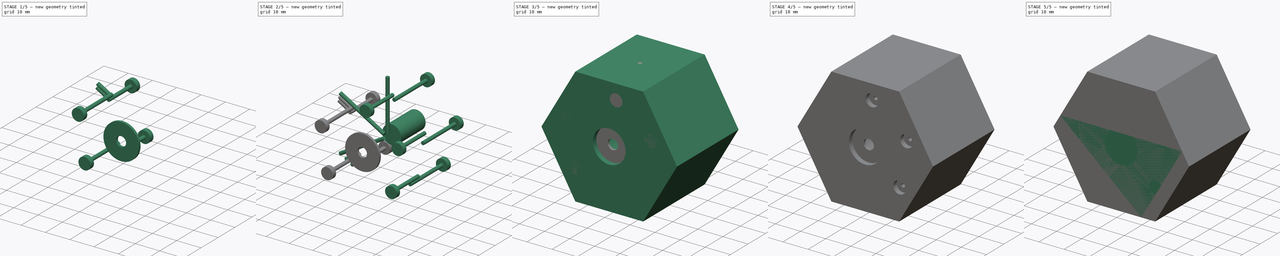
[diagram: build sequence overview — one tinted view per stage of 5, left to right]
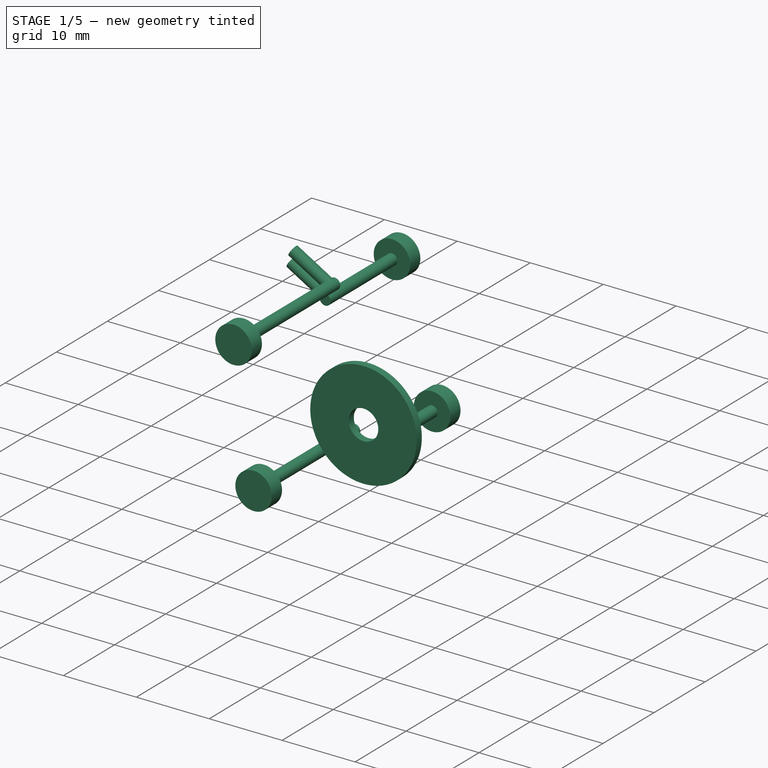
[diagram: stage 1 of 5 — iso view after this stage's code; geometry added in this stage tinted green]
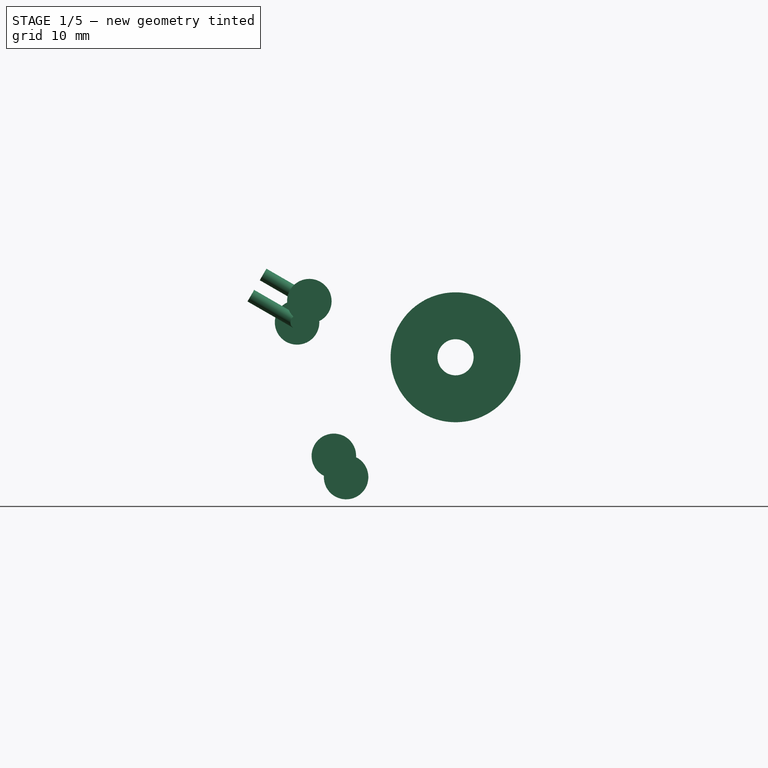
[diagram: stage 1 of 5 — front view after this stage's code; geometry added in this stage tinted green]
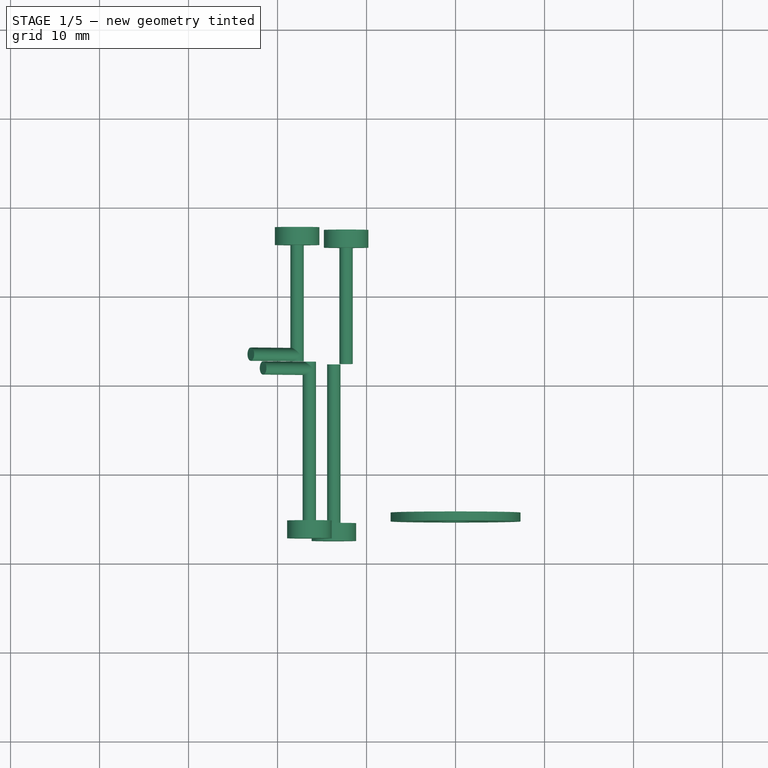
[diagram: stage 1 of 5 — top view after this stage's code; geometry added in this stage tinted green]
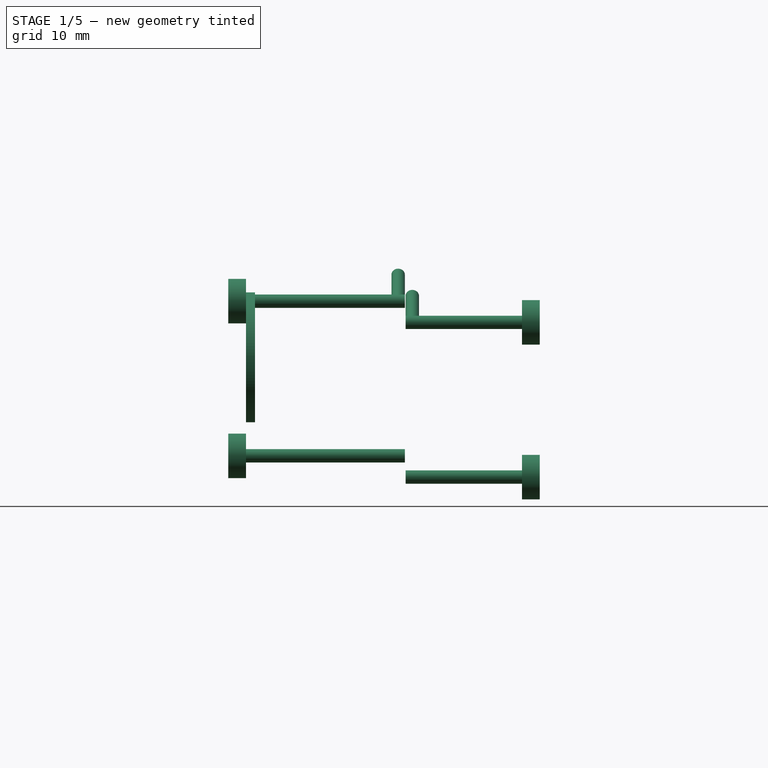
[diagram: stage 1 of 5 — right view after this stage's code; geometry added in this stage tinted green]
FCSTD DOCUMENT  (FreeCAD 0.18R4 (GitTag))
Label: body
Comment: # 2020-02-12 13:39:51: read from <userpath>/repositories/sussex_neuro/Olfactometer/hardware/mechanics/from_raiser_et_al/body.ipt
License: All rights reserved
LicenseURL: http://en.wikipedia.org/wiki/All_rights_reserved
objects: Sketcher::SketchObject×46, Part::Extrusion×19, Part::Cut×18, Part::FeaturePython×17, Part::Feature×10, Part::MultiFuse×5, PartDesign::Hole×3, Part::Chamfer×3, Spreadsheet::Sheet×1, Part::Revolution×1
note: 125 computed .brp shape members not serialized (recipe doc carries the construction recipe); baked Part::Feature solids carry a one-line shape summary decoded from their .brp

FEATURE [Sketcher::SketchObject] Sketch44
  Placement = pos=(-24.25,-17.5,4.76314) rot=(0,-1,0;1.0472rad)
  sketch-geometry (2):
    g0: Circle CenterX=2.49208 CenterY=20.68 CenterZ=0 NormalX=0 NormalY=0 NormalZ=1 AngleXU=0 Radius=0.75
    g1: Circle CenterX=5.24604 CenterY=19.09 CenterZ=0 NormalX=0 NormalY=0 NormalZ=1 AngleXU=0 Radius=0.75
FEATURE [Sketcher::SketchObject] Sketch44_bp
  Placement = pos=(-24.25,-17.5,4.76314) rot=(0,-1,0;1.0472rad)
  sketch-geometry (2):
    g0: Circle CenterX=2.49208 CenterY=20.68 CenterZ=0 NormalX=0 NormalY=0 NormalZ=1 AngleXU=0 Radius=0.75
    g1: Circle CenterX=5.24604 CenterY=19.09 CenterZ=0 NormalX=0 NormalY=0 NormalZ=1 AngleXU=0 Radius=0.75
FEATURE [Part::Extrusion] Extrusion34_Cut
  Base = -> Sketch44_bp
  Dir = (-0.866025,0,0.5)
  DirMode = 0
  FaceMakerClass = Part::FaceMakerBullseye
  LengthFwd = 6
  LengthRev = 0
  Reversed = true
  Solid = true
  Symmetric = false
  expr: LengthFwd = Parameters.d310_
  expr: TaperAngle = Parameters.d311_
FEATURE [Sketcher::SketchObject] Sketch45
  Placement = pos=(0,17.5,0) rot=(-1,0,0;1.5708rad)
  sketch-geometry (3):
    g0: LineSegment [constr] StartX=-17.4328 StartY=-4.57086 StartZ=0 EndX=-18.1828 EndY=-3.27182 EndZ=0
    g1: LineSegment [constr] StartX=-16.0558 StartY=-6.95586 StartZ=0 EndX=-16.8058 EndY=-5.65682 EndZ=0
    g2: Circle CenterX=-17.8078 CenterY=-3.92134 CenterZ=0 NormalX=0 NormalY=0 NormalZ=1 AngleXU=0 Radius=2.5
FEATURE [Sketcher::SketchObject] Sketch45_bp
  Placement = pos=(0,17.5,0) rot=(-1,0,0;1.5708rad)
  sketch-geometry (1):
    g0: Circle CenterX=-17.8078 CenterY=-3.92134 CenterZ=0 NormalX=0 NormalY=0 NormalZ=1 AngleXU=0 Radius=2.5
FEATURE [Part::Extrusion] Extrusion35_Cut
  Base = -> Sketch45_bp
  Dir = (0,1,0)
  DirMode = 0
  FaceMakerClass = Part::FaceMakerBullseye
  LengthFwd = 2
  LengthRev = 0
  Reversed = true
  Solid = true
  Symmetric = false
  expr: LengthFwd = Parameters.d312_
  expr: TaperAngle = Parameters.d313_
FEATURE [Sketcher::SketchObject] Sketch46
  Placement = pos=(-17.8078,15.5,3.92134) rot=(-1,0,0;1.5708rad)
  sketch-geometry (2):
    g0: Circle [constr] CenterX=0 CenterY=0 CenterZ=0 NormalX=0 NormalY=0 NormalZ=1 AngleXU=0 Radius=2.5
    g1: Circle CenterX=0 CenterY=0 CenterZ=0 NormalX=0 NormalY=0 NormalZ=1 AngleXU=0 Radius=0.75
FEATURE [Sketcher::SketchObject] Sketch46_bp
  Placement = pos=(-17.8078,15.5,3.92134) rot=(-1,0,0;1.5708rad)
  sketch-geometry (1):
    g0: Circle CenterX=0 CenterY=0 CenterZ=0 NormalX=0 NormalY=0 NormalZ=1 AngleXU=0 Radius=0.75
FEATURE [Part::Extrusion] Extrusion36_Cut
  Base = -> Sketch46_bp
  Dir = (0,1,0)
  DirMode = 0
  FaceMakerClass = Part::FaceMakerBullseye
  LengthFwd = 13.07
  LengthRev = 0
  Reversed = true
  Solid = true
  Symmetric = false
  expr: LengthFwd = Parameters.d315_
  expr: TaperAngle = Parameters.d316_
FEATURE [Sketcher::SketchObject] Sketch47
  Placement = pos=(0,-17.5,0) rot=(1,0,0;1.5708rad)
  sketch-geometry (2):
    g0: LineSegment [constr] StartX=-16.8058 StartY=5.65682 StartZ=0 EndX=-16.0558 EndY=6.95586 EndZ=0
    g1: Circle CenterX=-16.4308 CenterY=6.30634 CenterZ=0 NormalX=0 NormalY=0 NormalZ=1 AngleXU=0 Radius=2.5
FEATURE [Sketcher::SketchObject] Sketch47_bp
  Placement = pos=(0,-17.5,0) rot=(1,0,0;1.5708rad)
  sketch-geometry (1):
    g0: Circle CenterX=-16.4308 CenterY=6.30634 CenterZ=0 NormalX=0 NormalY=0 NormalZ=1 AngleXU=0 Radius=2.5
FEATURE [Part::Extrusion] Extrusion37_Cut
  Base = -> Sketch47_bp
  Dir = (0,-1,0)
  DirMode = 0
  FaceMakerClass = Part::FaceMakerBullseye
  LengthFwd = 2
  LengthRev = 0
  Reversed = true
  Solid = true
  Symmetric = false
  expr: LengthFwd = Parameters.d317_
  expr: TaperAngle = Parameters.d318_
FEATURE [Sketcher::SketchObject] Sketch48
  Placement = pos=(-16.4308,-15.5,6.30634) rot=(1,0,0;1.5708rad)
  sketch-geometry (2):
    g0: Circle [constr] CenterX=0 CenterY=0 CenterZ=0 NormalX=0 NormalY=0 NormalZ=1 AngleXU=0 Radius=2.5
    g1: Circle CenterX=0 CenterY=0 CenterZ=0 NormalX=0 NormalY=0 NormalZ=1 AngleXU=0 Radius=0.75
FEATURE [Sketcher::SketchObject] Sketch48_bp
  Placement = pos=(-16.4308,-15.5,6.30634) rot=(1,0,0;1.5708rad)
  sketch-geometry (1):
    g0: Circle CenterX=0 CenterY=0 CenterZ=0 NormalX=0 NormalY=0 NormalZ=1 AngleXU=0 Radius=0.75
FEATURE [Part::Extrusion] Extrusion38_Cut
  Base = -> Sketch48_bp
  Dir = (0,-1,0)
  DirMode = 0
  FaceMakerClass = Part::FaceMakerBullseye
  LengthFwd = 17.84
  LengthRev = 0
  Reversed = true
  Solid = true
  Symmetric = false
  expr: LengthFwd = Parameters.d320_
  expr: TaperAngle = Parameters.d321_
FEATURE [Sketcher::SketchObject] Sketch38_bp
  Placement = pos=(0,0,0) rot=(0.57735,0.57735,0.57735;2.0944rad)
  sketch-geometry (16):
    g0: LineSegment StartX=4.5 StartY=1.8 StartZ=0 EndX=5.5 EndY=1.8 EndZ=0
    g1: LineSegment StartX=5.5 StartY=1.8 StartZ=0 EndX=5.5 EndY=4.8 EndZ=0
    g2: LineSegment StartX=5.5 StartY=4.8 StartZ=0 EndX=4.5 EndY=4.8 EndZ=0
    g3: LineSegment StartX=4.5 StartY=4.8 StartZ=0 EndX=4.5 EndY=1.8 EndZ=0
    g4: LineSegment StartX=14.5 StartY=1.8 StartZ=0 EndX=15.5 EndY=1.8 EndZ=0
    g5: LineSegment StartX=15.5 StartY=1.8 StartZ=0 EndX=15.5 EndY=4.8 EndZ=0
    g6: LineSegment StartX=15.5 StartY=4.8 StartZ=0 EndX=14.5 EndY=4.8 EndZ=0
    g7: LineSegment StartX=14.5 StartY=4.8 StartZ=0 EndX=14.5 EndY=1.8 EndZ=0
    g8: LineSegment StartX=-15.5 StartY=2.02838 StartZ=0 EndX=-14.5 EndY=2.02838 EndZ=0
    g9: LineSegment StartX=-14.5 StartY=2.02838 StartZ=0 EndX=-14.5 EndY=7.3 EndZ=0
    g10: LineSegment StartX=-14.5 StartY=7.3 StartZ=0 EndX=-15.5 EndY=7.3 EndZ=0
    g11: LineSegment StartX=-15.5 StartY=7.3 StartZ=0 EndX=-15.5 EndY=2.02838 EndZ=0
    g12: LineSegment StartX=-5.5 StartY=2.02838 StartZ=0 EndX=-4.5 EndY=2.02838 EndZ=0
    g13: LineSegment StartX=-4.5 StartY=2.02838 StartZ=0 EndX=-4.5 EndY=7.3 EndZ=0
    g14: LineSegment StartX=-4.5 StartY=7.3 StartZ=0 EndX=-5.5 EndY=7.3 EndZ=0
    g15: LineSegment StartX=-5.5 StartY=7.3 StartZ=0 EndX=-5.5 EndY=2.02838 EndZ=0
FEATURE [Part::Revolution] Revolution2
  Angle = 360
  Axis = (0,1,0)
  Base = (0,-10,0)
  FaceMakerClass = Part::FaceMakerBullseye
  Solid = true
  Source = -> Sketch38_bp
  Symmetric = false
FEATURE [Sketcher::SketchObject] Sketch49
  Placement = pos=(-24.25,-17.5,4.76314) rot=(0,-1,0;1.0472rad)
  sketch-geometry (1):
    g0: Circle CenterX=8 CenterY=17.5 CenterZ=0 NormalX=0 NormalY=0 NormalZ=1 AngleXU=0 Radius=0.75
FEATURE [Sketcher::SketchObject] Sketch49_bp
  Placement = pos=(-24.25,-17.5,4.76314) rot=(0,-1,0;1.0472rad)
  sketch-geometry (1):
    g0: Circle CenterX=8 CenterY=17.5 CenterZ=0 NormalX=0 NormalY=0 NormalZ=1 AngleXU=0 Radius=0.75
FEATURE [Part::Extrusion] Extrusion39_Cut
  Base = -> Sketch49_bp
  Dir = (-0.866025,0,0.5)
  DirMode = 0
  FaceMakerClass = Part::FaceMakerBullseye
  LengthFwd = 21.75
  LengthRev = 0
  Reversed = true
  Solid = true
  Symmetric = false
  expr: LengthFwd = Parameters.d327_
  expr: TaperAngle = Parameters.d328_
FEATURE [Part::Cut] Extrusion39
  Base = -> Revolution2
  Tool = -> Extrusion39_Cut
FEATURE [Part::FeaturePython] Array013  # Draft array (typed FeaturePython)
  Angle = -60
  ArrayType = 1
  Axis = (0,1,0)
  Base = -> Extrusion35_Cut
  Center = (0,-10,0)
  Fuse = false
  IntervalAxis = (0,0,0)
  IntervalX = (1,0,0)
  IntervalY = (0,1,0)
  IntervalZ = (0,0,1)
  NumberPolar = 2
  NumberX = 1
  NumberY = 1
  NumberZ = 1
  expr: NumberPolar = Parameters.d331_
FEATURE [Part::FeaturePython] Array014  # Draft array (typed FeaturePython)
  Angle = -60
  ArrayType = 1
  Axis = (0,1,0)
  Base = -> Extrusion36_Cut
  Center = (0,-10,0)
  Fuse = false
  IntervalAxis = (0,0,0)
  IntervalX = (1,0,0)
  IntervalY = (0,1,0)
  IntervalZ = (0,0,1)
  NumberPolar = 2
  NumberX = 1
  NumberY = 1
  NumberZ = 1
  expr: NumberPolar = Parameters.d331_
FEATURE [Part::FeaturePython] Array015  # Draft array (typed FeaturePython)
  Angle = -60
  ArrayType = 1
  Axis = (0,1,0)
  Base = -> Extrusion37_Cut
  Center = (0,-10,0)
  Fuse = false
  IntervalAxis = (0,0,0)
  IntervalX = (1,0,0)
  IntervalY = (0,1,0)
  IntervalZ = (0,0,1)
  NumberPolar = 2
  NumberX = 1
  NumberY = 1
  NumberZ = 1
  expr: NumberPolar = Parameters.d331_
FEATURE [Part::FeaturePython] Array016  # Draft array (typed FeaturePython)
  Angle = -60
  ArrayType = 1
  Axis = (0,1,0)
  Base = -> Extrusion38_Cut
  Center = (0,-10,0)
  Fuse = false
  IntervalAxis = (0,0,0)
  IntervalX = (1,0,0)
  IntervalY = (0,1,0)
  IntervalZ = (0,0,1)
  NumberPolar = 2
  NumberX = 1
  NumberY = 1
  NumberZ = 1
  expr: NumberPolar = Parameters.d331_
FEATURE [Part::Cut] Extrusion38
  Base = -> Extrusion37
  Tool = -> Circular_Pattern12
FEATURE [Part::Feature] Thread15 .. Thread24  x10 (patterned run collapsed; names and placements below)
  shape: bbox 5 x 2 x 5 mm, 2 faces, 0 solids (baked)
FEATURE [Sketcher::SketchObject] Sketch51
  Placement = pos=(8,-17.5,-23.3827) rot=(0,1,0;3.14159rad)
  sketch-geometry (3):
    g0: Circle CenterX=8 CenterY=27 CenterZ=0 NormalX=0 NormalY=0 NormalZ=1 AngleXU=0 Radius=1.62107
    g1: Circle CenterX=8.00809 CenterY=17 CenterZ=0 NormalX=0 NormalY=0 NormalZ=1 AngleXU=0 Radius=1.62107
    g2: LineSegment [constr] StartX=0 StartY=35 StartZ=0 EndX=16 EndY=35 EndZ=0
FEATURE [Sketcher::SketchObject] Hole8_bp
  Placement = pos=(8,-17.5,-23.3827) rot=(0,1,0;3.14159rad)
  sketch-geometry (2):
    g0: Circle CenterX=8 CenterY=27 CenterZ=0 NormalX=0 NormalY=0 NormalZ=1 AngleXU=0 Radius=2.067
    g1: Circle CenterX=8.00809 CenterY=17 CenterZ=0 NormalX=0 NormalY=0 NormalZ=1 AngleXU=0 Radius=2.067
FEATURE [PartDesign::Hole] Hole8
  BaseFeature = -> Extrusion39
  Depth = 9.24198
  DepthType = 0
  Diameter = 4.134
  DrillPoint = 1
  DrillPointAngle = 118
  HoleCutCountersinkAngle = 90
  HoleCutDepth = 0
  HoleCutDiameter = 0
  HoleCutType = 0
  ModelActualThread = false
  Profile = -> Hole8_bp
  Tapered = false
  TaperedAngle = 90
  ThreadAngle = 0
  ThreadClass = 0
  ThreadCutOffInner = 0
  ThreadCutOffOuter = 0
  ThreadDirection = 0
  ThreadFit = 0
  ThreadPitch = 0
  ThreadSize = 0
  ThreadType = 0
  Threaded = false
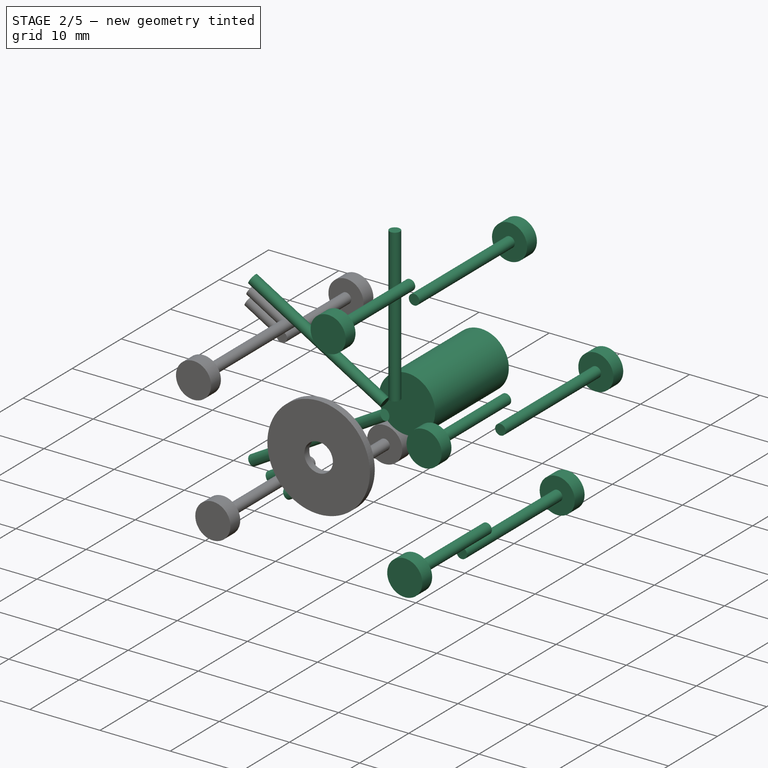
[diagram: stage 2 of 5 — iso view after this stage's code; geometry added in this stage tinted green]
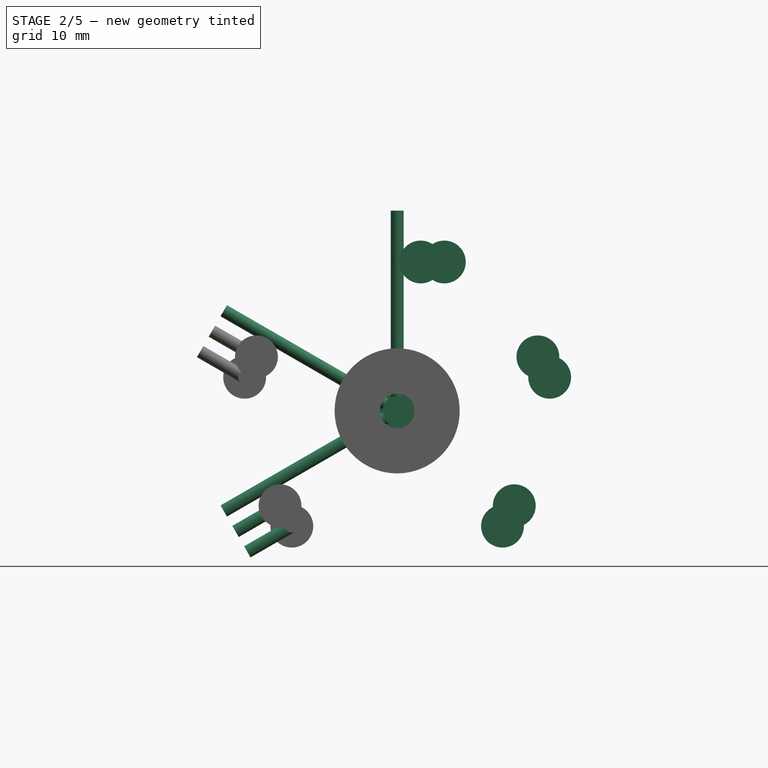
[diagram: stage 2 of 5 — front view after this stage's code; geometry added in this stage tinted green]
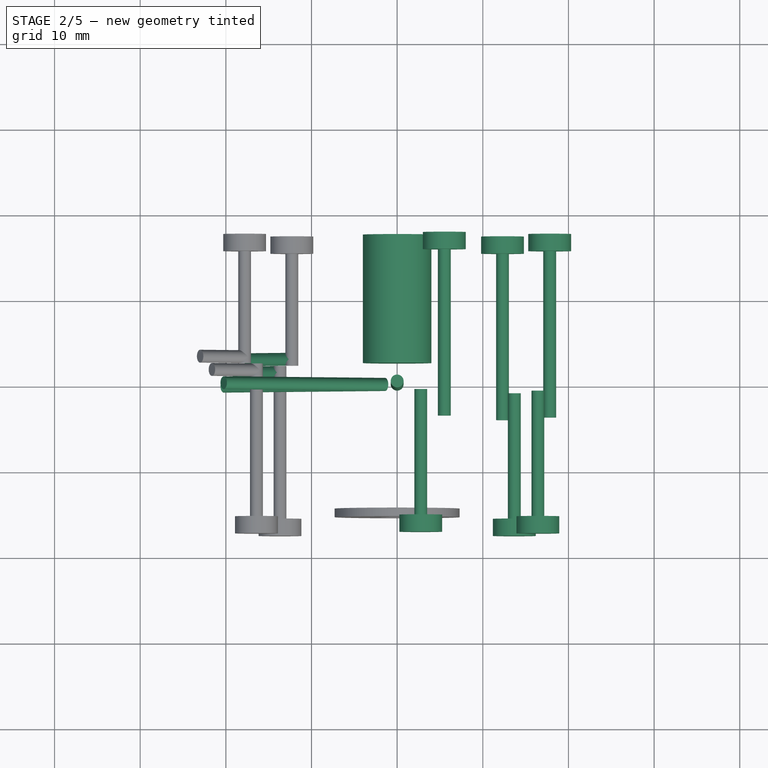
[diagram: stage 2 of 5 — top view after this stage's code; geometry added in this stage tinted green]
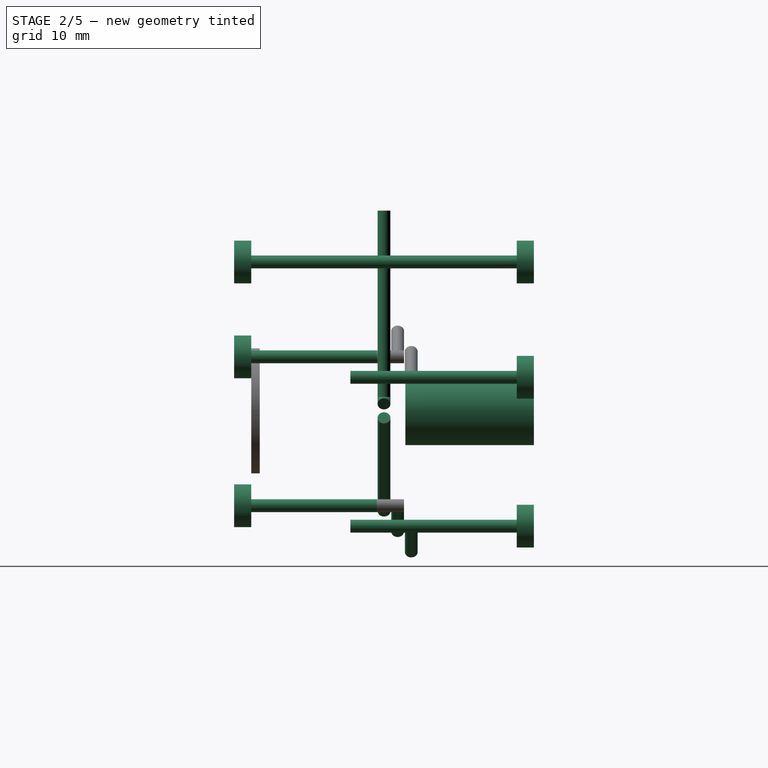
[diagram: stage 2 of 5 — right view after this stage's code; geometry added in this stage tinted green]
FEATURE [Sketcher::SketchObject] Sketch4
  Placement = pos=(0,17.5,0) rot=(-1,0,0;1.5708rad)
  sketch-geometry (1):
    g0: Circle CenterX=0 CenterY=0 CenterZ=0 NormalX=0 NormalY=0 NormalZ=1 AngleXU=0 Radius=4
FEATURE [Sketcher::SketchObject] Sketch4_bp
  Placement = pos=(0,17.5,0) rot=(-1,0,0;1.5708rad)
  sketch-geometry (1):
    g0: Circle CenterX=0 CenterY=0 CenterZ=0 NormalX=0 NormalY=0 NormalZ=1 AngleXU=0 Radius=4
FEATURE [Part::Extrusion] small_opening_Cut  label="small opening_Cut"
  Base = -> Sketch4_bp
  Dir = (0,1,0)
  DirMode = 0
  FaceMakerClass = Part::FaceMakerBullseye
  LengthFwd = 15
  LengthRev = 0
  Reversed = true
  Solid = true
  Symmetric = false
  expr: LengthFwd = Parameters.d11_
  expr: TaperAngle = Parameters.d12_
FEATURE [Sketcher::SketchObject] Sketch5
  Placement = pos=(-13.5,17.5,23.3827) rot=(0,0,1;0rad)
  sketch-geometry (1):
    g0: Circle CenterX=13.5 CenterY=-17.5 CenterZ=0 NormalX=0 NormalY=0 NormalZ=1 AngleXU=0 Radius=0.75
FEATURE [Sketcher::SketchObject] Sketch5_bp
  Placement = pos=(-13.5,17.5,23.3827) rot=(0,0,1;0rad)
  sketch-geometry (1):
    g0: Circle CenterX=13.5 CenterY=-17.5 CenterZ=0 NormalX=0 NormalY=0 NormalZ=1 AngleXU=0 Radius=0.75
FEATURE [Part::Extrusion] bore_to_chamber___NC_odor_valve_Cut  label="bore to chamber - NC odor valve_Cut"
  Base = -> Sketch5_bp
  Dir = (3e-16,0,1)
  DirMode = 0
  FaceMakerClass = Part::FaceMakerBullseye
  LengthFwd = 21.75
  LengthRev = 0
  Reversed = true
  Solid = true
  Symmetric = false
  expr: LengthFwd = Parameters.d14_
  expr: TaperAngle = Parameters.d15_
FEATURE [Sketcher::SketchObject] Sketch14_bp
  Placement = pos=(0,-17.5,0) rot=(1,0,0;1.5708rad)
  sketch-geometry (1):
    g0: Circle CenterX=2.75396 CenterY=17.3827 CenterZ=0 NormalX=0 NormalY=0 NormalZ=1 AngleXU=0 Radius=2.5
FEATURE [Part::Extrusion] Extrusion30_Cut
  Base = -> Sketch14_bp
  Dir = (0,-1,0)
  DirMode = 0
  FaceMakerClass = Part::FaceMakerBullseye
  LengthFwd = 2
  LengthRev = 0
  Reversed = true
  Solid = true
  Symmetric = false
  expr: LengthFwd = Parameters.d246_
  expr: TaperAngle = Parameters.d247_
FEATURE [Sketcher::SketchObject] Sketch39
  Placement = pos=(2.75396,-15.5,17.3827) rot=(1,0,0;1.5708rad)
  sketch-geometry (2):
    g0: Circle [constr] CenterX=0 CenterY=0 CenterZ=0 NormalX=0 NormalY=0 NormalZ=1 AngleXU=0 Radius=2.5
    g1: Circle CenterX=0 CenterY=0 CenterZ=0 NormalX=0 NormalY=0 NormalZ=1 AngleXU=0 Radius=0.75
FEATURE [Sketcher::SketchObject] Sketch39_bp
  Placement = pos=(2.75396,-15.5,17.3827) rot=(1,0,0;1.5708rad)
  sketch-geometry (1):
    g0: Circle CenterX=0 CenterY=0 CenterZ=0 NormalX=0 NormalY=0 NormalZ=1 AngleXU=0 Radius=0.75
FEATURE [Part::Extrusion] Extrusion31_Cut
  Base = -> Sketch39_bp
  Dir = (0,-1,0)
  DirMode = 0
  FaceMakerClass = Part::FaceMakerBullseye
  LengthFwd = 14.66
  LengthRev = 0
  Reversed = true
  Solid = true
  Symmetric = false
  expr: LengthFwd = Parameters.d251_
  expr: TaperAngle = Parameters.d252_
FEATURE [Sketcher::SketchObject] Sketch24_bp
  Placement = pos=(0,17.5,0) rot=(-1,0,0;1.5708rad)
  sketch-geometry (1):
    g0: Circle CenterX=5.50792 CenterY=-17.3827 CenterZ=0 NormalX=0 NormalY=0 NormalZ=1 AngleXU=0 Radius=2.5
FEATURE [Part::Extrusion] Extrusion32_Cut
  Base = -> Sketch24_bp
  Dir = (0,1,0)
  DirMode = 0
  FaceMakerClass = Part::FaceMakerBullseye
  LengthFwd = 2
  LengthRev = 0
  Reversed = true
  Solid = true
  Symmetric = false
  expr: LengthFwd = Parameters.d253_
  expr: TaperAngle = Parameters.d254_
FEATURE [Sketcher::SketchObject] Sketch40
  Placement = pos=(5.50792,15.5,17.3827) rot=(-1,0,0;1.5708rad)
  sketch-geometry (2):
    g0: Circle [constr] CenterX=0 CenterY=0 CenterZ=0 NormalX=0 NormalY=0 NormalZ=1 AngleXU=0 Radius=2.5
    g1: Circle CenterX=0 CenterY=0 CenterZ=0 NormalX=0 NormalY=0 NormalZ=1 AngleXU=0 Radius=0.75
FEATURE [Sketcher::SketchObject] Sketch40_bp
  Placement = pos=(5.50792,15.5,17.3827) rot=(-1,0,0;1.5708rad)
  sketch-geometry (1):
    g0: Circle CenterX=0 CenterY=0 CenterZ=0 NormalX=0 NormalY=0 NormalZ=1 AngleXU=0 Radius=0.75
FEATURE [Part::Extrusion] Extrusion33_Cut
  Base = -> Sketch40_bp
  Dir = (0,1,0)
  DirMode = 0
  FaceMakerClass = Part::FaceMakerBullseye
  LengthFwd = 19.43
  LengthRev = 0
  Reversed = true
  Solid = true
  Symmetric = false
  expr: LengthFwd = Parameters.d258_
  expr: TaperAngle = Parameters.d259_
FEATURE [Part::FeaturePython] Array006  # Draft array (typed FeaturePython)
  Angle = 120
  ArrayType = 1
  Axis = (0,1,0)
  Base = -> Extrusion30_Cut
  Center = (0,-10,0)
  Fuse = false
  IntervalAxis = (0,0,0)
  IntervalX = (1,0,0)
  IntervalY = (0,1,0)
  IntervalZ = (0,0,1)
  NumberPolar = 3
  NumberX = 1
  NumberY = 1
  NumberZ = 1
  expr: NumberPolar = Parameters.d262_
FEATURE [Part::FeaturePython] Array007  # Draft array (typed FeaturePython)
  Angle = 120
  ArrayType = 1
  Axis = (0,1,0)
  Base = -> Extrusion31_Cut
  Center = (0,-10,0)
  Fuse = false
  IntervalAxis = (0,0,0)
  IntervalX = (1,0,0)
  IntervalY = (0,1,0)
  IntervalZ = (0,0,1)
  NumberPolar = 3
  NumberX = 1
  NumberY = 1
  NumberZ = 1
  expr: NumberPolar = Parameters.d262_
FEATURE [Part::FeaturePython] Array008  # Draft array (typed FeaturePython)
  Angle = 120
  ArrayType = 1
  Axis = (0,1,0)
  Base = -> Extrusion32_Cut
  Center = (0,-10,0)
  Fuse = false
  IntervalAxis = (0,0,0)
  IntervalX = (1,0,0)
  IntervalY = (0,1,0)
  IntervalZ = (0,0,1)
  NumberPolar = 3
  NumberX = 1
  NumberY = 1
  NumberZ = 1
  expr: NumberPolar = Parameters.d262_
FEATURE [Part::FeaturePython] Array009  # Draft array (typed FeaturePython)
  Angle = 120
  ArrayType = 1
  Axis = (0,1,0)
  Base = -> Extrusion33_Cut
  Center = (0,-10,0)
  Fuse = false
  IntervalAxis = (0,0,0)
  IntervalX = (1,0,0)
  IntervalY = (0,1,0)
  IntervalZ = (0,0,1)
  NumberPolar = 3
  NumberX = 1
  NumberY = 1
  NumberZ = 1
  expr: NumberPolar = Parameters.d262_
FEATURE [Part::MultiFuse] Circular_Pattern9  label="Circular Pattern9"
  Shapes = -> [Array006,Array007,Array008,Array009]
FEATURE [Part::FeaturePython] Array011  # Draft array (typed FeaturePython)
  Angle = -60
  ArrayType = 1
  Axis = (0,1,0)
  Base = -> Extrusion39_Cut
  Center = (0,-10,0)
  Fuse = false
  IntervalAxis = (0,0,0)
  IntervalX = (1,0,0)
  IntervalY = (0,1,0)
  IntervalZ = (0,0,1)
  NumberPolar = 2
  NumberX = 1
  NumberY = 1
  NumberZ = 1
  expr: NumberPolar = Parameters.d331_
FEATURE [Part::FeaturePython] Array012  # Draft array (typed FeaturePython)
  Angle = -60
  ArrayType = 1
  Axis = (0,1,0)
  Base = -> Extrusion34_Cut
  Center = (0,-10,0)
  Fuse = false
  IntervalAxis = (0,0,0)
  IntervalX = (1,0,0)
  IntervalY = (0,1,0)
  IntervalZ = (0,0,1)
  NumberPolar = 2
  NumberX = 1
  NumberY = 1
  NumberZ = 1
  expr: NumberPolar = Parameters.d331_
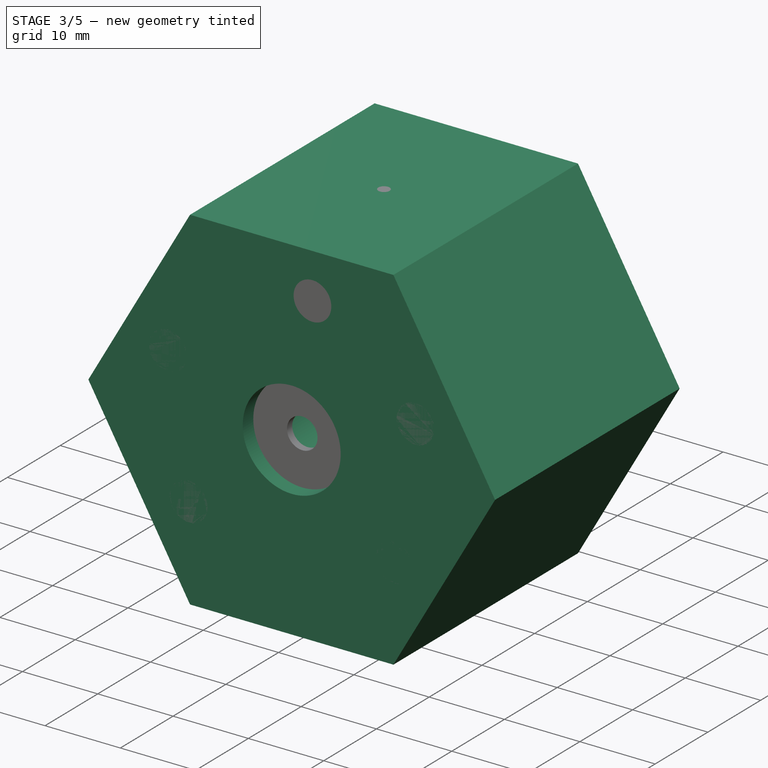
[diagram: stage 3 of 5 — iso view after this stage's code; geometry added in this stage tinted green]
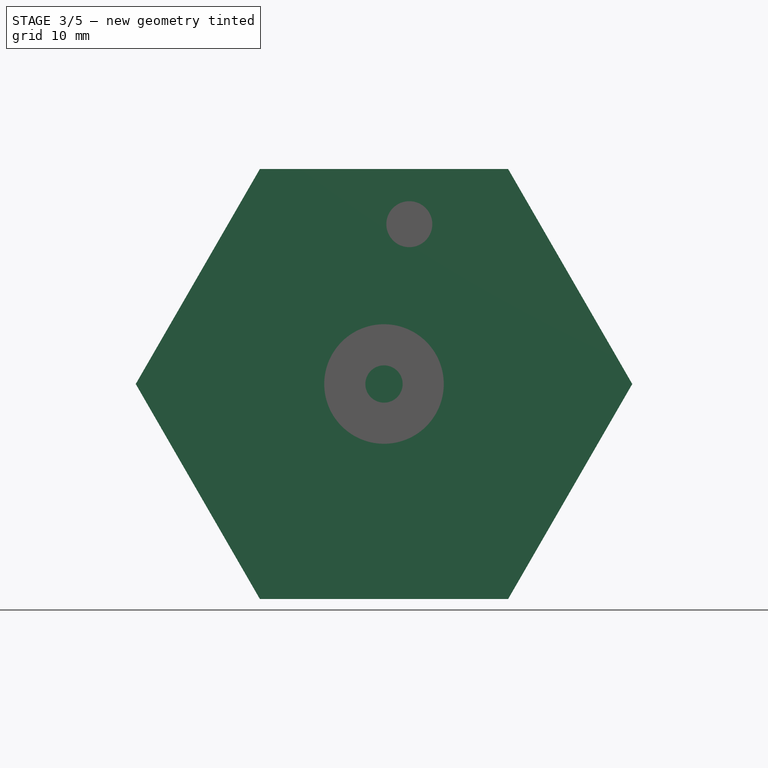
[diagram: stage 3 of 5 — front view after this stage's code; geometry added in this stage tinted green]
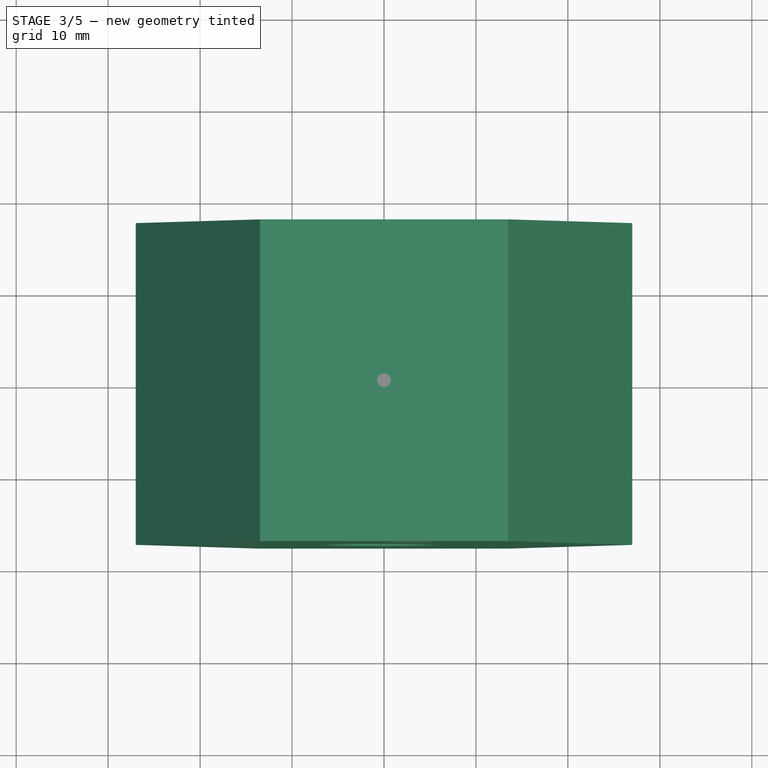
[diagram: stage 3 of 5 — top view after this stage's code; geometry added in this stage tinted green]
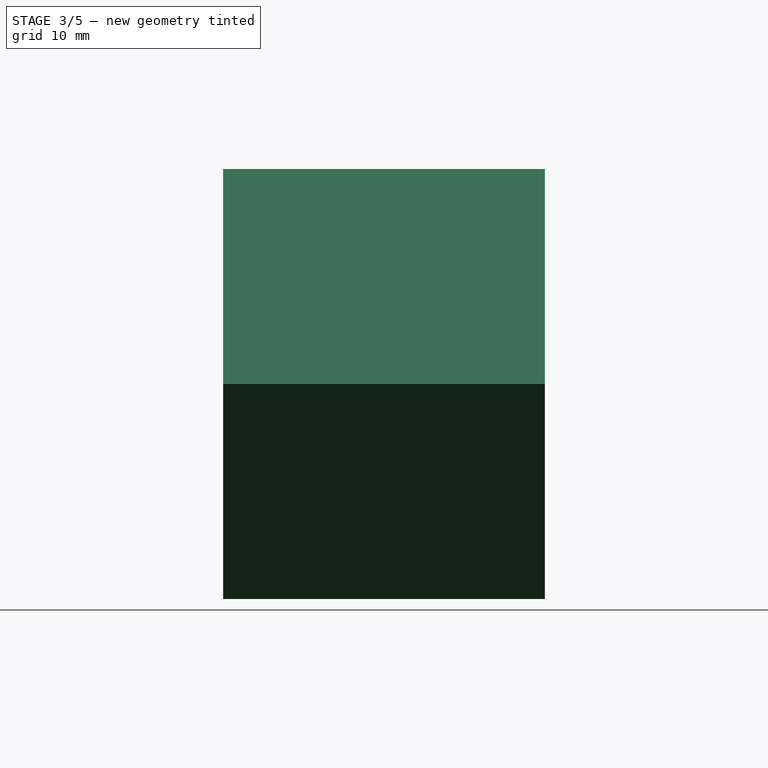
[diagram: stage 3 of 5 — right view after this stage's code; geometry added in this stage tinted green]
FEATURE [Spreadsheet::Sheet] Parameters
  cells = A1=Parameter; B1=Value; C1=Fromula; D1=Tolerance; E1=Comment; A2=d0; B2(d0_)=27; C2==27mm; D2=NOMINAL; A3=d10; B3(d10_)=8; C3==8mm; D3=NOMINAL; A4=d107; B4(d107_)=1.567; C4==1.567mm; D4=NOMINAL; A5=d108; B5(d108_)=6.000000000000001; C5==6mm; D5=NOMINAL; A6=d109; B6(d109_)=4; C6==4mm; D6=NOMINAL; A7=d11; B7(d11_)=15; C7==15mm; D7=NOMINAL; A8=d110; B8(d110_)=2; C8==2mm; D8=NOMINAL; A9=d111; B9(d111_)=90; C9==90°; D9=NOMINAL; A10=d112; B10(d112_)=4; C10==4mm; D10=NOMINAL; A11=d113; B11(d113_)=118; C11==118°; D11=NOMINAL; A12=d12; B12(d12_)=0; C12==0°; D12=NOMINAL; A13=d13; B13(d13_)=1.5; C13==1.5mm; D13=NOMINAL; A14=d139; B14(d139_)=3; C14='3; D14=NOMINAL; A15=d14; B15(d14_)=21.75; C15==21.75mm; D15=NOMINAL; A16=d140; B16(d140_)=120; C16==120°; D16=NOMINAL; A17=d141; B17(d141_)=3; C17='3; A18=d143; B18(d143_)=5.5; C18==5.5mm; D18=NOMINAL; A19=d144; B19(d144_)=2; C19==2mm; D19=NOMINAL; A20=d145; B20(d145_)=45; C20==45°; D20=NOMINAL; A21=d15; B21(d15_)=0; C21==0°; D21=NOMINAL; A22=d16; B22(d16_)=1.5; C22==1.5mm; D22=NOMINAL; A23=d18; B23(d18_)=6.000000000000001; C23==6mm; D23=NOMINAL; A24=d19; B24(d19_)=0; C24==0°; D24=NOMINAL; A25=d190; B25(d190_)=2; C25==2mm; D25=NOMINAL; A26=d191; B26(d191_)=0; C26==0°; D26=NOMINAL; A27=d192; B27(d192_)=2; C27==2mm; D27=NOMINAL; A28=d193; B28(d193_)=0; C28==0°; D28=NOMINAL; A29=d195; B29(d195_)=6; C29='6; D29=NOMINAL; A30=d196; B30(d196_)=360; C30==360°; D30=NOMINAL; A31=d197; B31(d197_)=6; C31='6; A32=d2; B32(d2_)=35; C32==35mm; D32=NOMINAL; A33=d20; B33(d20_)=1.5; C33==1.5mm; D33=NOMINAL; A34=d209; B34(d209_)=0.5; C34==0.5mm; D34=NOMINAL; A35=d210; B35(d210_)=2; C35==2mm; D35=NOMINAL; A36=d211; B36(d211_)=0; C36==0mm; D36=NOMINAL; A37=d212; B37(d212_)=20; C37==20mm; D37=NOMINAL; A38=d213; B38(d213_)=0.5; C38==0.5mm; D38=NOMINAL; A39=d214; B39(d214_)=2; C39==2mm; D39=NOMINAL; A40=d215; B40(d215_)=0; C40==0mm; D40=NOMINAL; A41=d216; B41(d216_)=20; C41==20mm; D41=NOMINAL; A42=d22; B42(d22_)=6.000000000000001; C42==6mm; D42=NOMINAL; A43=d23; B43(d23_)=0; C43==0°; D43=NOMINAL; A44=d242; B44(d242_)=0.5; C44==0.5mm; D44=NOMINAL; A45=d243; B45(d243_)=2; C45==2mm; D45=NOMINAL; A46=d244; B46(d244_)=45; C46==45°; D46=NOMINAL; A47=d246; B47(d246_)=2; C47==2mm; D47=NOMINAL; A48=d247; B48(d247_)=0; C48==0°; D48=NOMINAL; A49=d250; B49(d250_)=1.5; C49==1.5mm; D49=NOMINAL; A50=d251; B50(d251_)=14.66; C50==14.66mm; D50=NOMINAL; A51=d252; +337 more cells
FEATURE [Sketcher::SketchObject] Sketch1
  Placement = pos=(0,0,0) rot=(0,0.707107,0.707107;3.14159rad)
  sketch-geometry (6):
    g0: LineSegment StartX=27 StartY=9e-15 StartZ=0 EndX=13.5 EndY=-23.3827 EndZ=0
    g1: LineSegment StartX=13.5 StartY=-23.3827 StartZ=0 EndX=-13.5 EndY=-23.3827 EndZ=0
    g2: LineSegment StartX=-13.5 StartY=-23.3827 StartZ=0 EndX=-27 EndY=-1.78e-14 EndZ=0
    g3: LineSegment StartX=-27 StartY=-1.83e-14 StartZ=0 EndX=-13.5 EndY=23.3827 EndZ=0
    g4: LineSegment StartX=-13.5 StartY=23.3827 StartZ=0 EndX=13.5 EndY=23.3827 EndZ=0
    g5: LineSegment StartX=13.5 StartY=23.3827 StartZ=0 EndX=27 EndY=1.07e-14 EndZ=0
FEATURE [Sketcher::SketchObject] Sketch1_bp
  Placement = pos=(0,0,0) rot=(0,0.707107,0.707107;3.14159rad)
  sketch-geometry (6):
    g0: LineSegment StartX=27 StartY=9e-15 StartZ=0 EndX=13.5 EndY=-23.3827 EndZ=0
    g1: LineSegment StartX=13.5 StartY=-23.3827 StartZ=0 EndX=-13.5 EndY=-23.3827 EndZ=0
    g2: LineSegment StartX=-13.5 StartY=-23.3827 StartZ=0 EndX=-27 EndY=-1.78e-14 EndZ=0
    g3: LineSegment StartX=-27 StartY=-1.83e-14 StartZ=0 EndX=-13.5 EndY=23.3827 EndZ=0
    g4: LineSegment StartX=-13.5 StartY=23.3827 StartZ=0 EndX=13.5 EndY=23.3827 EndZ=0
    g5: LineSegment StartX=13.5 StartY=23.3827 StartZ=0 EndX=27 EndY=1.07e-14 EndZ=0
FEATURE [Part::Extrusion] body
  Base = -> Sketch1_bp
  Dir = (0,1,0)
  DirMode = 0
  FaceMakerClass = Part::FaceMakerBullseye
  LengthFwd = 35
  LengthRev = 0
  Solid = true
  Symmetric = true
  expr: LengthFwd = Parameters.d2_
  expr: TaperAngle = Parameters.d3_
FEATURE [Sketcher::SketchObject] Sketch2
  Placement = pos=(0,-17.5,0) rot=(1,0,0;1.5708rad)
  sketch-geometry (1):
    g0: Circle CenterX=0 CenterY=0 CenterZ=0 NormalX=0 NormalY=0 NormalZ=1 AngleXU=0 Radius=6.5
  constraints (1):
    c: Radius(g0) = 6.5  'd4'
FEATURE [Sketcher::SketchObject] Sketch2_bp
  Placement = pos=(0,-17.5,0) rot=(1,0,0;1.5708rad)
  sketch-geometry (1):
    g0: Circle CenterX=0 CenterY=0 CenterZ=0 NormalX=0 NormalY=0 NormalZ=1 AngleXU=0 Radius=6.5
FEATURE [Part::Extrusion] big_opening_Cut  label="big opening_Cut"
  Base = -> Sketch2_bp
  Dir = (0,-1,0)
  DirMode = 0
  FaceMakerClass = Part::FaceMakerBullseye
  LengthFwd = 15
  LengthRev = 0
  Reversed = true
  Solid = true
  Symmetric = false
  expr: LengthFwd = Parameters.d5_
  expr: TaperAngle = Parameters.d6_
FEATURE [Part::Cut] big_opening  label="big opening"
  Base = -> body
  Tool = -> big_opening_Cut
FEATURE [Sketcher::SketchObject] Sketch3
  Placement = pos=(0,-2.5,0) rot=(1,0,0;1.5708rad)
  sketch-geometry (2):
    g0: Circle [constr] CenterX=0 CenterY=0 CenterZ=0 NormalX=0 NormalY=0 NormalZ=1 AngleXU=0 Radius=6.5
    g1: Circle CenterX=0 CenterY=0 CenterZ=0 NormalX=0 NormalY=0 NormalZ=1 AngleXU=0 Radius=2
  constraints (1):
    c: Radius(g1) = 2  'd7'
FEATURE [Sketcher::SketchObject] Sketch3_bp
  Placement = pos=(0,-2.5,0) rot=(1,0,0;1.5708rad)
  sketch-geometry (1):
    g0: Circle CenterX=0 CenterY=0 CenterZ=0 NormalX=0 NormalY=0 NormalZ=1 AngleXU=0 Radius=2
FEATURE [Part::Extrusion] chamber_Cut
  Base = -> Sketch3_bp
  Dir = (0,-1,0)
  DirMode = 0
  FaceMakerClass = Part::FaceMakerBullseye
  LengthFwd = 5
  LengthRev = 0
  Reversed = true
  Solid = true
  Symmetric = false
  expr: LengthFwd = Parameters.d8_
  expr: TaperAngle = Parameters.d9_
FEATURE [Part::Cut] chamber
  Base = -> big_opening
  Tool = -> chamber_Cut
FEATURE [Part::Cut] small_opening  label="small opening"
  Base = -> chamber
  Tool = -> small_opening_Cut
FEATURE [Part::Cut] bore_to_chamber___NC_odor_valve  label="bore to chamber - NC odor valve"
  Base = -> small_opening
  Tool = -> bore_to_chamber___NC_odor_valve_Cut
FEATURE [Sketcher::SketchObject] Sketch38
  Placement = pos=(0,0,0) rot=(0.57735,0.57735,0.57735;2.0944rad)
  sketch-geometry (33):
    g0: LineSegment [constr] StartX=-15 StartY=6.8 StartZ=0 EndX=-15 EndY=2.52838 EndZ=0
    g1: LineSegment [constr] StartX=-5 StartY=6.8 StartZ=0 EndX=-5 EndY=2.52838 EndZ=0
    g2: LineSegment [constr] StartX=15 StartY=4.3 StartZ=0 EndX=15 EndY=2.3 EndZ=0
    g3: LineSegment [constr] StartX=5 StartY=4.3 StartZ=0 EndX=5 EndY=2.3 EndZ=0
    g4: LineSegment StartX=-15.5 StartY=2.02838 StartZ=0 EndX=-14.5 EndY=2.02838 EndZ=0
    g5: LineSegment StartX=-14.5 StartY=2.02838 StartZ=0 EndX=-14.5 EndY=7.3 EndZ=0
    g6: LineSegment StartX=-14.5 StartY=7.3 StartZ=0 EndX=-15.5 EndY=7.3 EndZ=0
    g7: LineSegment StartX=-15.5 StartY=7.3 StartZ=0 EndX=-15.5 EndY=2.02838 EndZ=0
    g8: LineSegment [constr] StartX=-15.5 StartY=2.02838 StartZ=0 EndX=-14.5 EndY=7.3 EndZ=0
    g9: LineSegment [constr] StartX=-14.5 StartY=2.02838 StartZ=0 EndX=-15.5 EndY=7.3 EndZ=0
    g10: LineSegment StartX=-5.5 StartY=2.02838 StartZ=0 EndX=-4.5 EndY=2.02838 EndZ=0
    g11: LineSegment StartX=-4.5 StartY=7.3 StartZ=0 EndX=-5.5 EndY=7.3 EndZ=0
    g12: LineSegment [constr] StartX=-5.5 StartY=2.02838 StartZ=0 EndX=-4.5 EndY=7.3 EndZ=0
    g13: LineSegment [constr] StartX=-4.5 StartY=2.02838 StartZ=0 EndX=-5.5 EndY=7.3 EndZ=0
    g14: LineSegment StartX=4.5 StartY=1.8 StartZ=0 EndX=5.5 EndY=1.8 EndZ=0
    g15: LineSegment StartX=5.5 StartY=1.8 StartZ=0 EndX=5.5 EndY=4.8 EndZ=0
    g16: LineSegment StartX=5.5 StartY=4.8 StartZ=0 EndX=4.5 EndY=4.8 EndZ=0
    g17: LineSegment StartX=4.5 StartY=4.8 StartZ=0 EndX=4.5 EndY=1.8 EndZ=0
    g18: LineSegment [constr] StartX=4.5 StartY=1.8 StartZ=0 EndX=5.5 EndY=4.8 EndZ=0
    g19: LineSegment [constr] StartX=5.5 StartY=1.8 StartZ=0 EndX=4.5 EndY=4.8 EndZ=0
    g20: LineSegment StartX=14.5 StartY=1.8 StartZ=0 EndX=15.5 EndY=1.8 EndZ=0
    g21: LineSegment StartX=15.5 StartY=1.8 StartZ=0 EndX=15.5 EndY=4.8 EndZ=0
    g22: LineSegment StartX=15.5 StartY=4.8 StartZ=0 EndX=14.5 EndY=4.8 EndZ=0
    g23: LineSegment StartX=14.5 StartY=4.8 StartZ=0 EndX=14.5 EndY=1.8 EndZ=0
    g24: LineSegment [constr] StartX=14.5 StartY=1.8 StartZ=0 EndX=15.5 EndY=4.8 EndZ=0
    g25: LineSegment [constr] StartX=15.5 StartY=1.8 StartZ=0 EndX=14.5 EndY=4.8 EndZ=0
    g26: LineSegment StartX=-5.5 StartY=7.3 StartZ=0 EndX=-5.5 EndY=2.02838 EndZ=0
    g27: LineSegment StartX=-4.5 StartY=2.02838 StartZ=0 EndX=-4.5 EndY=7.3 EndZ=0
    g28: LineSegment [constr] StartX=-24.5 StartY=0 StartZ=0 EndX=24.5 EndY=0 EndZ=0
    g29: GeomPoint X=-15 Y=4.66419 Z=0
    g30: GeomPoint X=-5 Y=4.66419 Z=0
    g31: GeomPoint X=15 Y=3.3 Z=0
    g32: GeomPoint X=5 Y=3.3 Z=0
  constraints (55):
    c: Parallel(g4,g6)
    c: Parallel(g5,g7)
    c: Horizontal(g4)
    c: Parallel(g10,g11)
    c: Horizontal(g10)
    c: Perpendicular(g14,g15)
    c: Parallel(g14,g16)
    c: Parallel(g15,g17)
    c: Horizontal(g14)
    c: Perpendicular(g20,g21)
    c: Parallel(g20,g22)
    c: Parallel(g21,g23)
    c: Horizontal(g20)
    c: Parallel(g23,g26)
    c: Parallel(g26,g27)
    c: PointOnObject(g29,g9)
    c: PointOnObject(g29,g8)
    c: PointOnObject(g30,g13)
    c: PointOnObject(g30,g12)
    c: PointOnObject(g31,g25)
    c: PointOnObject(g31,g24)
    c: PointOnObject(g32,g19)
    c: PointOnObject(g32,g18)
    c: Coincident(g4,g7)
    c: Coincident(g4,g8)
    c: Coincident(g5,g6)
    c: Coincident(g5,g8)
    c: Coincident(g4,g5)
    c: Coincident(g4,g9)
    c: Coincident(g6,g7)
    c: Coincident(g6,g9)
    c: Coincident(g10,g12)
    c: Coincident(g10,g26)
    c: Coincident(g11,g12)
    c: Coincident(g11,g27)
    c: Coincident(g10,g13)
    c: Coincident(g10,g27)
    c: Coincident(g11,g13)
    c: Coincident(g11,g26)
    c: Coincident(g14,g17)
    c: Coincident(g14,g18)
    c: Coincident(g15,g16)
    c: Coincident(g15,g18)
    c: Coincident(g14,g15)
    c: Coincident(g14,g19)
    c: Coincident(g16,g17)
    c: Coincident(g16,g19)
    c: Coincident(g20,g23)
    c: Coincident(g20,g24)
    c: Coincident(g21,g22)
    c: Coincident(g21,g24)
    c: Coincident(g20,g21)
    c: Coincident(g20,g25)
    c: Coincident(g22,g23)
    c: Coincident(g22,g25)
FEATURE [Part::Chamfer] Chamfer2_1
  Base = -> big_opening
  Edges = 1 edges r=0.5: [Edge14]
FEATURE [Part::Chamfer] Chamfer2_2
  Base = -> bore_to_chamber___NC_odor_valve
  Edges = 1 edges r=0.5: [Edge18]
FEATURE [Part::MultiFuse] Chamfer2
  Shapes = -> [Chamfer2_1,Chamfer2_2]
FEATURE [Part::Cut] Extrusion30
  Base = -> Chamfer2
  Tool = -> Extrusion30_Cut
FEATURE [Part::Cut] Extrusion31
  Base = -> Extrusion30
  Tool = -> Extrusion31_Cut
FEATURE [Part::Cut] Extrusion32
  Base = -> Extrusion31
  Tool = -> Extrusion32_Cut
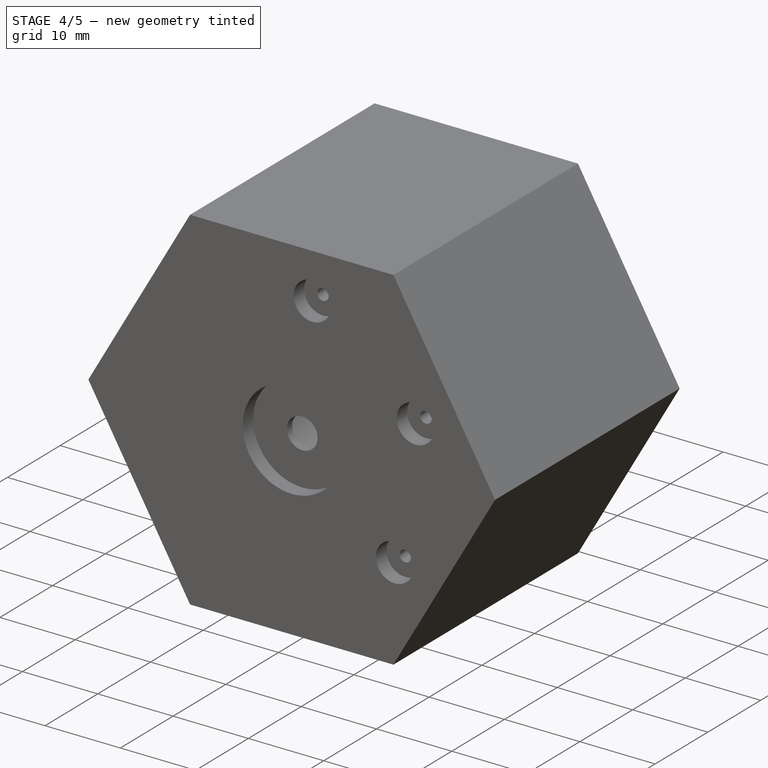
[diagram: stage 4 of 5 — iso view after this stage's code; geometry added in this stage tinted green]
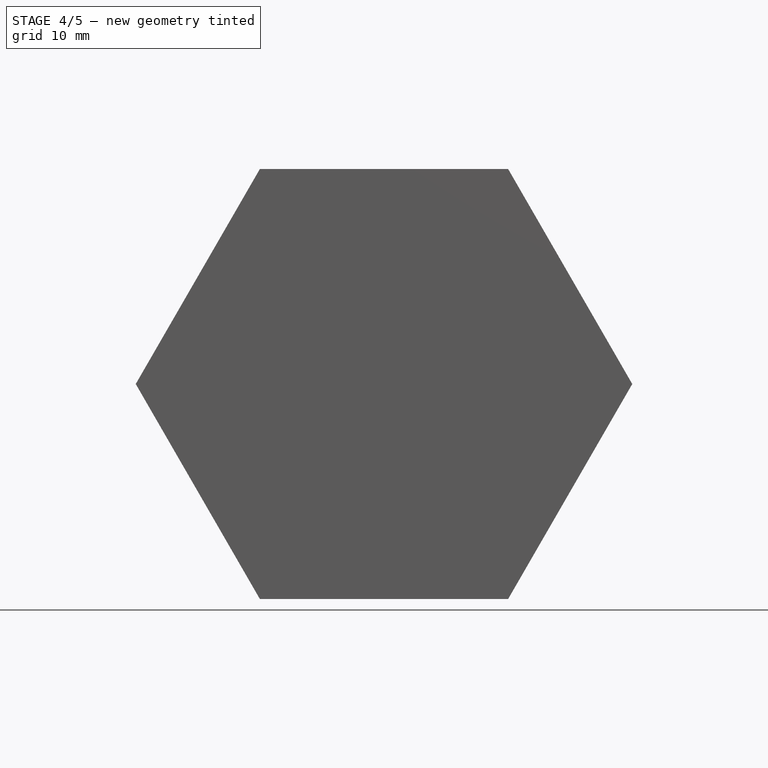
[diagram: stage 4 of 5 — front view after this stage's code; geometry added in this stage tinted green]
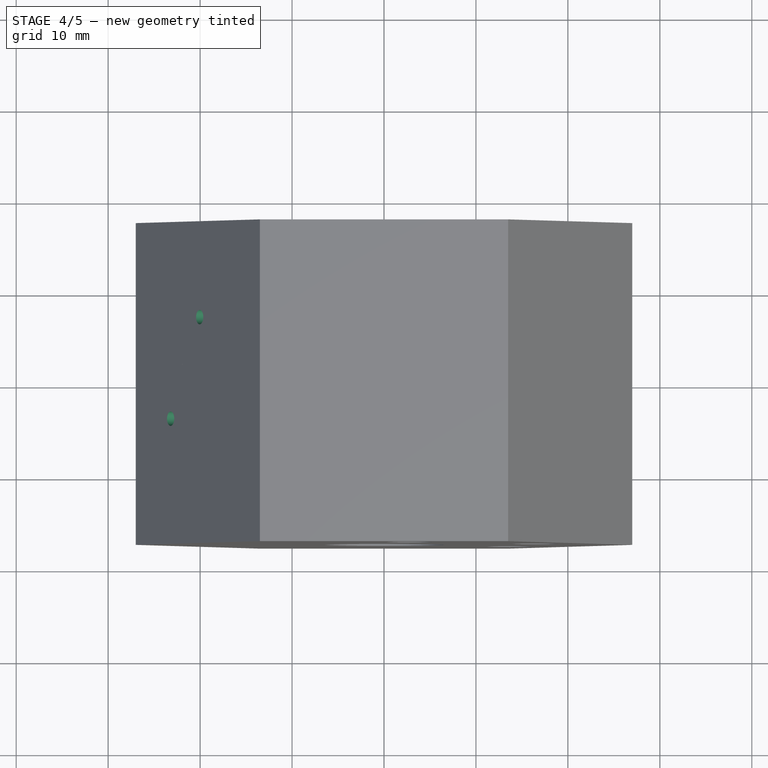
[diagram: stage 4 of 5 — top view after this stage's code; geometry added in this stage tinted green]
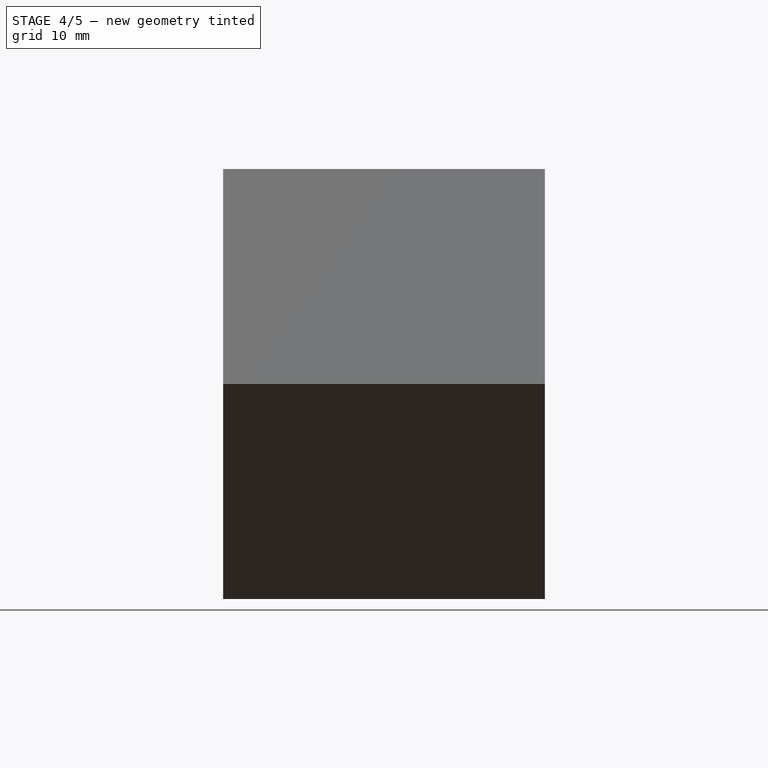
[diagram: stage 4 of 5 — right view after this stage's code; geometry added in this stage tinted green]
FEATURE [Sketcher::SketchObject] Sketch32
  Placement = pos=(-8,-17.5,23.3827) rot=(0,0,1;0rad)
  sketch-geometry (9):
    g0: LineSegment StartX=8 StartY=20.68 StartZ=0 EndX=8 EndY=-12.0174 EndZ=0
    g1: LineSegment StartX=1.675 StartY=17.5 StartZ=0 EndX=14.325 EndY=17.5 EndZ=0
    g2: LineSegment StartX=16 StartY=8 StartZ=0 EndX=16 EndY=4 EndZ=0
    g3: LineSegment StartX=1.33e-14 StartY=8 StartZ=0 EndX=-1.7e-15 EndY=4 EndZ=0
    g4: LineSegment [constr] StartX=0 StartY=35 StartZ=0 EndX=16 EndY=35 EndZ=0
    g5: LineSegment StartX=1.33e-14 StartY=8 StartZ=0 EndX=16 EndY=8 EndZ=0
    g6: LineSegment [constr] StartX=0 StartY=0 StartZ=0 EndX=0 EndY=35 EndZ=0
    g7: LineSegment StartX=16 StartY=4 StartZ=0 EndX=-1.8e-15 EndY=4 EndZ=0
    g8: LineSegment [constr] StartX=16 StartY=0 StartZ=0 EndX=0 EndY=0 EndZ=0
  constraints (2):
    c: Parallel(g4,g5)
    c: Perpendicular(g6,g7)
FEATURE [Sketcher::SketchObject] Sketch33
  Placement = pos=(16.25,-17.5,18.6195) rot=(0,1,0;0.523599rad)
  sketch-geometry (5):
    g0: LineSegment StartX=-9.52628 StartY=8 StartZ=0 EndX=8.9e-15 EndY=8 EndZ=0
    g1: LineSegment StartX=9.1e-15 StartY=8 StartZ=0 EndX=1.1e-14 EndY=4 EndZ=0
    g2: LineSegment StartX=1.1e-14 StartY=4 StartZ=0 EndX=-9.52628 EndY=4 EndZ=0
    g3: LineSegment StartX=-9.52628 StartY=8 StartZ=0 EndX=-9.52628 EndY=4 EndZ=0
    g4: LineSegment [constr] StartX=-9.52628 StartY=0 StartZ=0 EndX=0 EndY=0 EndZ=0
FEATURE [Sketcher::SketchObject] Sketch32_bp
  Placement = pos=(-8,-17.5,23.3827) rot=(0,0,1;0rad)
  sketch-geometry (4):
    g0: LineSegment StartX=1.33e-14 StartY=8 StartZ=0 EndX=-1.7e-15 EndY=4 EndZ=0
    g1: LineSegment StartX=-1.7e-15 StartY=4 StartZ=0 EndX=16 EndY=4 EndZ=0
    g2: LineSegment StartX=16 StartY=4 StartZ=0 EndX=16 EndY=8 EndZ=0
    g3: LineSegment StartX=16 StartY=8 StartZ=0 EndX=1.24e-14 EndY=8 EndZ=0
FEATURE [Part::Extrusion] cable_1_Cut  label="cable 1_Cut"
  Base = -> Sketch32_bp
  Dir = (3e-16,0,1)
  DirMode = 0
  FaceMakerClass = Part::FaceMakerBullseye
  LengthFwd = 2
  LengthRev = 0
  Reversed = true
  Solid = true
  Symmetric = false
  expr: LengthFwd = Parameters.d190_
  expr: TaperAngle = Parameters.d191_
FEATURE [Sketcher::SketchObject] Sketch33_bp
  Placement = pos=(16.25,-17.5,18.6195) rot=(0,1,0;0.523599rad)
  sketch-geometry (4):
    g0: LineSegment StartX=-9.52628 StartY=8 StartZ=0 EndX=8.9e-15 EndY=8 EndZ=0
    g1: LineSegment StartX=9.1e-15 StartY=8 StartZ=0 EndX=1.1e-14 EndY=4 EndZ=0
    g2: LineSegment StartX=1.1e-14 StartY=4 StartZ=0 EndX=-9.52628 EndY=4 EndZ=0
    g3: LineSegment StartX=-9.52628 StartY=4 StartZ=0 EndX=-9.52628 EndY=8 EndZ=0
FEATURE [Part::Extrusion] cable_2_Cut  label="cable 2_Cut"
  Base = -> Sketch33_bp
  Dir = (0.5,0,0.866025)
  DirMode = 0
  FaceMakerClass = Part::FaceMakerBullseye
  LengthFwd = 2
  LengthRev = 0
  Reversed = true
  Solid = true
  Symmetric = false
  expr: LengthFwd = Parameters.d192_
  expr: TaperAngle = Parameters.d193_
FEATURE [Part::FeaturePython] Array004  # Draft array (typed FeaturePython)
  Angle = 360
  ArrayType = 1
  Axis = (0,1,0)
  Base = -> cable_1_Cut
  Center = (0,-10,0)
  Fuse = false
  IntervalAxis = (0,0,0)
  IntervalX = (1,0,0)
  IntervalY = (0,1,0)
  IntervalZ = (0,0,1)
  NumberPolar = 6
  NumberX = 1
  NumberY = 1
  NumberZ = 1
  expr: NumberPolar = Parameters.d197_
FEATURE [Part::FeaturePython] Array005  # Draft array (typed FeaturePython)
  Angle = 360
  ArrayType = 1
  Axis = (0,1,0)
  Base = -> cable_2_Cut
  Center = (0,-10,0)
  Fuse = false
  IntervalAxis = (0,0,0)
  IntervalX = (1,0,0)
  IntervalY = (0,1,0)
  IntervalZ = (0,0,1)
  NumberPolar = 6
  NumberX = 1
  NumberY = 1
  NumberZ = 1
  expr: NumberPolar = Parameters.d197_
FEATURE [Part::MultiFuse] cable_path  label="cable path"
  Shapes = -> [Array004,Array005]
FEATURE [Part::Cut] Extrusion33
  Base = -> Extrusion32
  Tool = -> Circular_Pattern9
FEATURE [Sketcher::SketchObject] Sketch43
  Placement = pos=(-24.25,-17.5,4.76314) rot=(0,-1,0;1.0472rad)
  sketch-geometry (3):
    g0: Circle CenterX=8 CenterY=17.5 CenterZ=0 NormalX=0 NormalY=0 NormalZ=1 AngleXU=0 Radius=0.75
    g1: Circle CenterX=8.40854 CenterY=24.5676 CenterZ=0 NormalX=0 NormalY=0 NormalZ=1 AngleXU=0 Radius=0.7835
    g2: Circle CenterX=2.08354 CenterY=13.6124 CenterZ=0 NormalX=0 NormalY=0 NormalZ=1 AngleXU=0 Radius=0.7835
FEATURE [Sketcher::SketchObject] Hole6_bp
  Placement = pos=(-24.25,-17.5,4.76314) rot=(0,-1,0;1.0472rad)
  sketch-geometry (2):
    g0: Circle CenterX=8.40854 CenterY=24.5676 CenterZ=0 NormalX=0 NormalY=0 NormalZ=1 AngleXU=0 Radius=0.7835
    g1: Circle CenterX=2.08354 CenterY=13.6124 CenterZ=0 NormalX=0 NormalY=0 NormalZ=1 AngleXU=0 Radius=0.7835
FEATURE [PartDesign::Hole] Hole6
  BaseFeature = -> Extrusion33
  Depth = 4.47077
  DepthType = 0
  Diameter = 1.567
  DrillPoint = 1
  DrillPointAngle = 118
  HoleCutCountersinkAngle = 90
  HoleCutDepth = 0
  HoleCutDiameter = 0
  HoleCutType = 0
  ModelActualThread = false
  Profile = -> Hole6_bp
  Tapered = false
  TaperedAngle = 90
  ThreadAngle = 0
  ThreadClass = 0
  ThreadCutOffInner = 0
  ThreadCutOffOuter = 0
  ThreadDirection = 0
  ThreadFit = 0
  ThreadPitch = 0
  ThreadSize = 0
  ThreadType = 0
  Threaded = false
FEATURE [Part::Cut] Extrusion34
  Base = -> Hole6
  Tool = -> Extrusion34_Cut
FEATURE [Part::Cut] Extrusion35
  Base = -> Extrusion34
  Tool = -> Extrusion35_Cut
FEATURE [Part::Cut] Extrusion36
  Base = -> Extrusion35
  Tool = -> Extrusion36_Cut
FEATURE [Part::Cut] Extrusion37
  Base = -> Extrusion36
  Tool = -> Extrusion37_Cut
FEATURE [Part::FeaturePython] Array010  # Draft array (typed FeaturePython)
  Angle = -60
  ArrayType = 1
  Axis = (0,1,0)
  Base = -> Hole6
  Center = (0,-10,0)
  Fuse = false
  IntervalAxis = (0,0,0)
  IntervalX = (1,0,0)
  IntervalY = (0,1,0)
  IntervalZ = (0,0,1)
  NumberPolar = 2
  NumberX = 1
  NumberY = 1
  NumberZ = 1
  expr: NumberPolar = Parameters.d331_
FEATURE [Part::MultiFuse] Circular_Pattern12  label="Circular Pattern12"
  Shapes = -> [Array010,Array011,Array012,Array013,Array014,Array015,Array016]
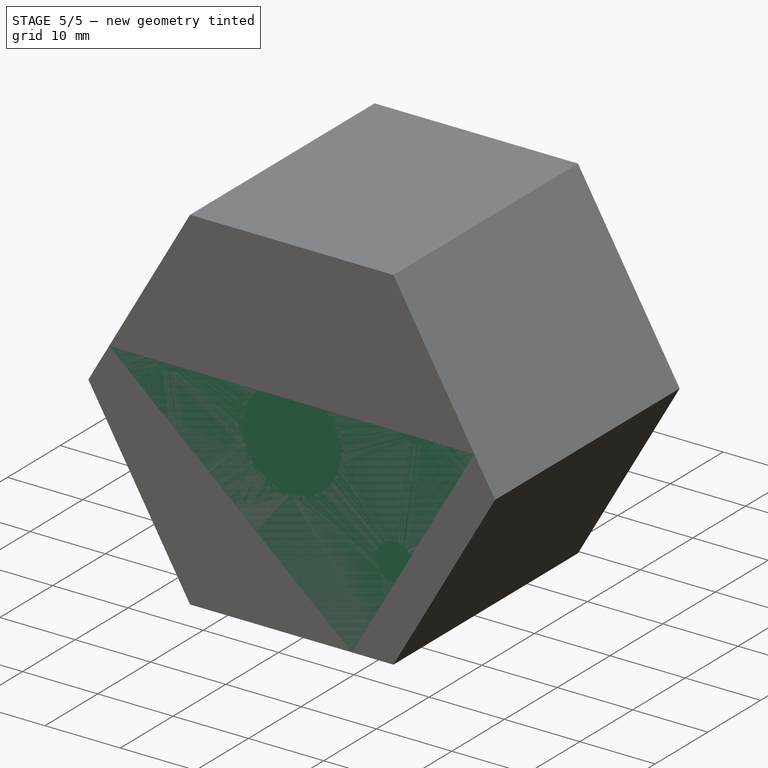
[diagram: stage 5 of 5 — iso view after this stage's code; geometry added in this stage tinted green]
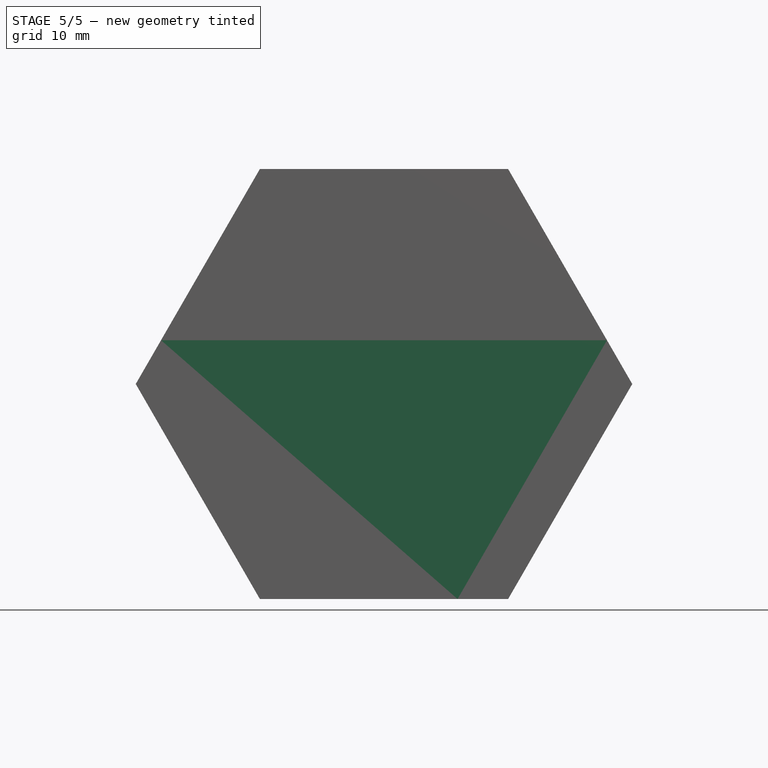
[diagram: stage 5 of 5 — front view after this stage's code; geometry added in this stage tinted green]
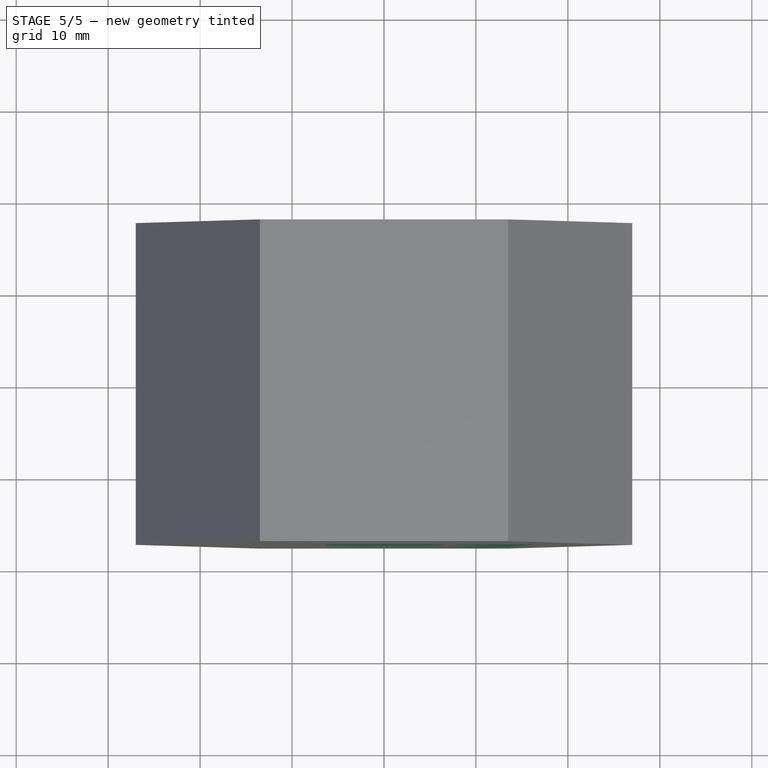
[diagram: stage 5 of 5 — top view after this stage's code; geometry added in this stage tinted green]
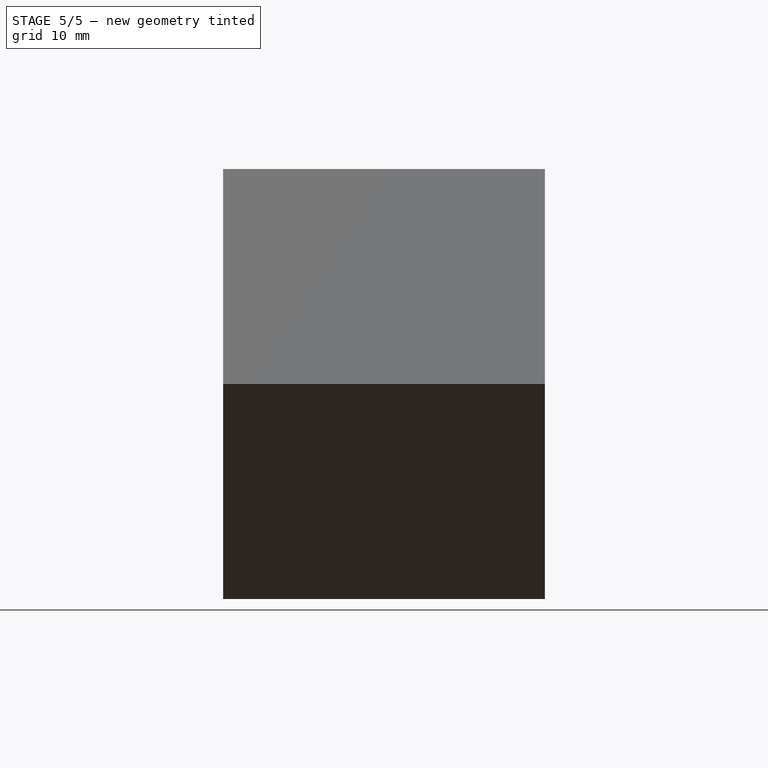
[diagram: stage 5 of 5 — right view after this stage's code; geometry added in this stage tinted green]
FEATURE [Sketcher::SketchObject] Sketch6
  Placement = pos=(-13.5,17.5,23.3827) rot=(0,0,1;0rad)
  sketch-geometry (10):
    g0: Circle CenterX=16.254 CenterY=-19.09 CenterZ=0 NormalX=0 NormalY=0 NormalZ=1 AngleXU=0 Radius=0.75
    g1: LineSegment [constr] StartX=27 StartY=-35 StartZ=0 EndX=0 EndY=-35 EndZ=0
    g2: LineSegment [constr] StartX=16.2208 StartY=-17.5 StartZ=0 EndX=16.8807 EndY=-17.5 EndZ=0
    g3: Circle [constr] CenterX=13.5 CenterY=-17.5 CenterZ=0 NormalX=0 NormalY=0 NormalZ=1 AngleXU=0 Radius=0.75
    g4: LineSegment [constr] StartX=0 StartY=0 StartZ=0 EndX=0 EndY=-35 EndZ=0
    g5: LineSegment [constr] StartX=9.1947 StartY=-17.5 StartZ=0 EndX=21.8821 EndY=-17.5 EndZ=0
    g6: LineSegment [constr] StartX=21.8821 StartY=-17.5 StartZ=0 EndX=9.1947 EndY=-17.5 EndZ=0
    g7: LineSegment [constr] StartX=9.1947 StartY=-17.5 StartZ=0 EndX=21.4138 EndY=-17.5 EndZ=0
    g8: LineSegment [constr] StartX=13.5 StartY=-17.5 StartZ=0 EndX=19.8228 EndY=-21.1505 EndZ=0
    g9: LineSegment [constr] StartX=13.5 StartY=-17.5 StartZ=0 EndX=20.801 EndY=-17.5 EndZ=0
  constraints (8):
    c: Parallel(g1,g2)
    c: Perpendicular(g4,g5)
    c: Parallel(g5,g6)
    c: Horizontal(g7)
    c: Horizontal(g9)
    c: Equal(g9,g8)
    c: Coincident(g5,g6)
    c: Coincident(g5,g7)
FEATURE [Sketcher::SketchObject] Sketch6_bp
  Placement = pos=(-13.5,17.5,23.3827) rot=(0,0,1;0rad)
  sketch-geometry (1):
    g0: Circle CenterX=16.254 CenterY=-19.09 CenterZ=0 NormalX=0 NormalY=0 NormalZ=1 AngleXU=0 Radius=0.75
FEATURE [Part::Extrusion] odor_in___COM_odor_valve_Cut  label="odor in - COM odor valve_Cut"
  Base = -> Sketch6_bp
  Dir = (3e-16,0,1)
  DirMode = 0
  FaceMakerClass = Part::FaceMakerBullseye
  LengthFwd = 6
  LengthRev = 0
  Reversed = true
  Solid = true
  Symmetric = false
  expr: LengthFwd = Parameters.d18_
  expr: TaperAngle = Parameters.d19_
FEATURE [Part::Cut] odor_in___COM_odor_valve  label="odor in - COM odor valve"
  Base = -> bore_to_chamber___NC_odor_valve
  Tool = -> odor_in___COM_odor_valve_Cut
FEATURE [Sketcher::SketchObject] Sketch7
  Placement = pos=(-13.5,17.5,23.3827) rot=(0,0,1;0rad)
  sketch-geometry (5):
    g0: Circle CenterX=19.0079 CenterY=-20.68 CenterZ=0 NormalX=0 NormalY=0 NormalZ=1 AngleXU=0 Radius=0.75
    g1: Circle [constr] CenterX=16.254 CenterY=-19.09 CenterZ=0 NormalX=0 NormalY=0 NormalZ=1 AngleXU=0 Radius=0.75
    g2: Circle [constr] CenterX=13.5 CenterY=-17.5 CenterZ=0 NormalX=0 NormalY=0 NormalZ=1 AngleXU=0 Radius=0.75
    g3: LineSegment [constr] StartX=13.5 StartY=-17.5 StartZ=0 EndX=16.254 EndY=-19.09 EndZ=0
    g4: LineSegment [constr] StartX=16.254 StartY=-19.09 StartZ=0 EndX=20.4027 EndY=-21.4853 EndZ=0
  constraints (1):
    c: Parallel(g3,g4)
FEATURE [Sketcher::SketchObject] Sketch7_bp
  Placement = pos=(-13.5,17.5,23.3827) rot=(0,0,1;0rad)
  sketch-geometry (1):
    g0: Circle CenterX=19.0079 CenterY=-20.68 CenterZ=0 NormalX=0 NormalY=0 NormalZ=1 AngleXU=0 Radius=0.75
FEATURE [Part::Extrusion] waste___NO_odor_valve_Cut  label="waste - NO odor valve_Cut"
  Base = -> Sketch7_bp
  Dir = (3e-16,0,1)
  DirMode = 0
  FaceMakerClass = Part::FaceMakerBullseye
  LengthFwd = 6
  LengthRev = 0
  Reversed = true
  Solid = true
  Symmetric = false
  expr: LengthFwd = Parameters.d22_
  expr: TaperAngle = Parameters.d23_
FEATURE [Part::Cut] waste___NO_odor_valve  label="waste - NO odor valve"
  Base = -> odor_in___COM_odor_valve
  Tool = -> waste___NO_odor_valve_Cut
FEATURE [Sketcher::SketchObject] Sketch14
  Placement = pos=(0,-17.5,0) rot=(1,0,0;1.5708rad)
  sketch-geometry (5):
    g0: LineSegment [constr] StartX=13.5 StartY=23.3827 StartZ=0 EndX=-13.5 EndY=23.3827 EndZ=0
    g1: Circle CenterX=2.75396 CenterY=17.3827 CenterZ=0 NormalX=0 NormalY=0 NormalZ=1 AngleXU=0 Radius=2.5
    g2: LineSegment [constr] StartX=-8 StartY=-23.3827 StartZ=0 EndX=8 EndY=-23.3827 EndZ=0
    g3: LineSegment [constr] StartX=9.87639 StartY=17.3827 StartZ=0 EndX=-9.58825 EndY=17.3827 EndZ=0
    g4: LineSegment [constr] StartX=2.00396 StartY=17.3827 StartZ=0 EndX=3.50396 EndY=17.3827 EndZ=0
  constraints (1):
    c: Parallel(g2,g3)
FEATURE [Sketcher::SketchObject] Sketch24
  Placement = pos=(0,17.5,0) rot=(-1,0,0;1.5708rad)
  sketch-geometry (3):
    g0: LineSegment [constr] StartX=-13.5 StartY=-23.3827 StartZ=0 EndX=13.5 EndY=-23.3827 EndZ=0
    g1: Circle CenterX=5.50792 CenterY=-17.3827 CenterZ=0 NormalX=0 NormalY=0 NormalZ=1 AngleXU=0 Radius=2.5
    g2: LineSegment [constr] StartX=6.25792 StartY=-17.3827 StartZ=0 EndX=4.75792 EndY=-17.3827 EndZ=0
FEATURE [Sketcher::SketchObject] Sketch27
  Placement = pos=(-13.5,17.5,23.3827) rot=(0,0,1;0rad)
  sketch-geometry (7):
    g0: Circle [constr] CenterX=16.254 CenterY=-19.09 CenterZ=0 NormalX=0 NormalY=0 NormalZ=1 AngleXU=0 Radius=0.75
    g1: Circle [constr] CenterX=19.0079 CenterY=-20.68 CenterZ=0 NormalX=0 NormalY=0 NormalZ=1 AngleXU=0 Radius=0.75
    g2: Circle [constr] CenterX=13.5 CenterY=-17.5 CenterZ=0 NormalX=0 NormalY=0 NormalZ=1 AngleXU=0 Radius=0.75
    g3: LineSegment [constr] StartX=13.5 StartY=-17.5 StartZ=0 EndX=19.0079 EndY=-20.68 EndZ=0
    g4: LineSegment [constr] StartX=19.0079 StartY=-20.68 StartZ=0 EndX=16.254 EndY=-19.09 EndZ=0
    g5: LineSegment [constr] StartX=16.254 StartY=-19.09 StartZ=0 EndX=21.0878 EndY=-10.7175 EndZ=0
    g6: LineSegment [constr] StartX=21.0878 StartY=-10.7175 StartZ=0 EndX=11.9185 EndY=-26.5992 EndZ=0
  constraints (1):
    c: Perpendicular(g3,g6)
FEATURE [Sketcher::SketchObject] valve_screws_bp  label="valve screws_bp"
  Placement = pos=(-13.5,17.5,23.3827) rot=(0,0,1;0rad)
  sketch-geometry (2):
    g0: Circle CenterX=19.4165 CenterY=-13.6124 CenterZ=0 NormalX=0 NormalY=0 NormalZ=1 AngleXU=0 Radius=0.7835
    g1: Circle CenterX=13.0915 CenterY=-24.5676 CenterZ=0 NormalX=0 NormalY=0 NormalZ=1 AngleXU=0 Radius=0.7835
FEATURE [PartDesign::Hole] valve_screws  label="valve screws"
  BaseFeature = -> waste___NO_odor_valve
  Depth = 4.47077
  DepthType = 0
  Diameter = 1.567
  DrillPoint = 1
  DrillPointAngle = 118
  HoleCutCountersinkAngle = 90
  HoleCutDepth = 0
  HoleCutDiameter = 0
  HoleCutType = 0
  ModelActualThread = false
  Profile = -> valve_screws_bp
  Tapered = false
  TaperedAngle = 90
  ThreadAngle = 0
  ThreadClass = 0
  ThreadCutOffInner = 0
  ThreadCutOffOuter = 0
  ThreadDirection = 0
  ThreadFit = 0
  ThreadPitch = 0
  ThreadSize = 0
  ThreadType = 0
  Threaded = false
FEATURE [Part::FeaturePython] Array  # Draft array (typed FeaturePython)
  Angle = 120
  ArrayType = 1
  Axis = (0,1,0)
  Base = -> bore_to_chamber___NC_odor_valve_Cut
  Center = (0,-10,0)
  Fuse = false
  IntervalAxis = (0,0,0)
  IntervalX = (1,0,0)
  IntervalY = (0,1,0)
  IntervalZ = (0,0,1)
  NumberPolar = 3
  NumberX = 1
  NumberY = 1
  NumberZ = 1
  expr: NumberPolar = Parameters.d141_
FEATURE [Part::FeaturePython] Array001  # Draft array (typed FeaturePython)
  Angle = 120
  ArrayType = 1
  Axis = (0,1,0)
  Base = -> odor_in___COM_odor_valve_Cut
  Center = (0,-10,0)
  Fuse = false
  IntervalAxis = (0,0,0)
  IntervalX = (1,0,0)
  IntervalY = (0,1,0)
  IntervalZ = (0,0,1)
  NumberPolar = 3
  NumberX = 1
  NumberY = 1
  NumberZ = 1
  expr: NumberPolar = Parameters.d141_
FEATURE [Part::FeaturePython] Array002  # Draft array (typed FeaturePython)
  Angle = 120
  ArrayType = 1
  Axis = (0,1,0)
  Base = -> waste___NO_odor_valve_Cut
  Center = (0,-10,0)
  Fuse = false
  IntervalAxis = (0,0,0)
  IntervalX = (1,0,0)
  IntervalY = (0,1,0)
  IntervalZ = (0,0,1)
  NumberPolar = 3
  NumberX = 1
  NumberY = 1
  NumberZ = 1
  expr: NumberPolar = Parameters.d141_
FEATURE [Part::FeaturePython] Array003  # Draft array (typed FeaturePython)
  Angle = 120
  ArrayType = 1
  Axis = (0,1,0)
  Base = -> valve_screws
  Center = (0,-10,0)
  Fuse = false
  IntervalAxis = (0,0,0)
  IntervalX = (1,0,0)
  IntervalY = (0,1,0)
  IntervalZ = (0,0,1)
  NumberPolar = 3
  NumberX = 1
  NumberY = 1
  NumberZ = 1
  expr: NumberPolar = Parameters.d141_
FEATURE [Part::MultiFuse] odor_valves  label="odor valves"
  Shapes = -> [Array,Array001,Array002,Array003]
FEATURE [Part::Chamfer] Chamfer1
  Base = -> body
  Edges = 6 edges r=5.5: [Edge11,Edge8,Edge14,Edge1,Edge5,Edge2]
FEATURE [Part::Cut] cable_1  label="cable 1"
  Base = -> Chamfer1
  Tool = -> cable_1_Cut
FEATURE [Part::Cut] cable_2  label="cable 2"
  Base = -> cable_1
  Tool = -> cable_path
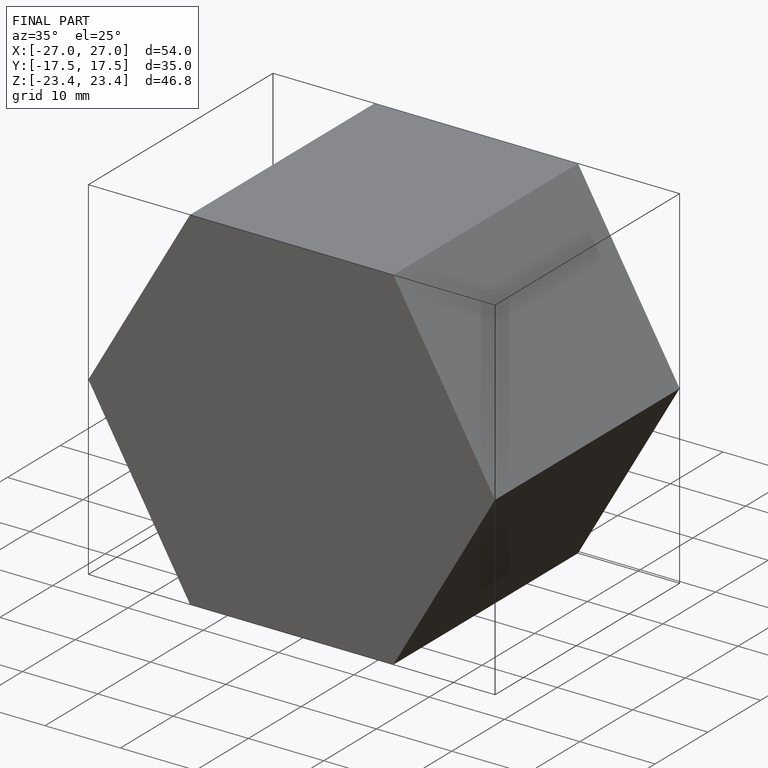
[diagram: finished part — iso view with bounding-box wireframe]
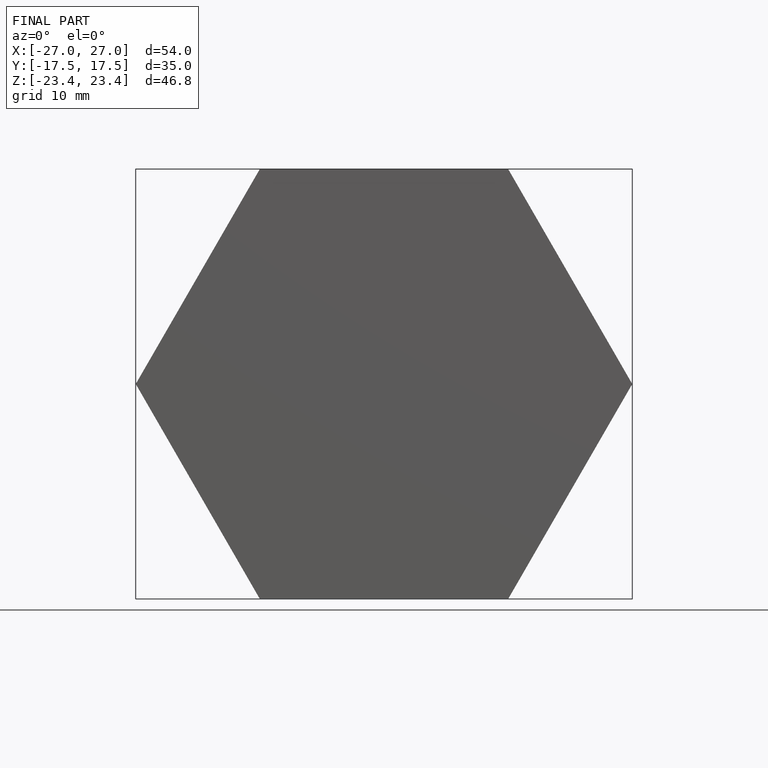
[diagram: finished part — front view with bounding-box wireframe]
